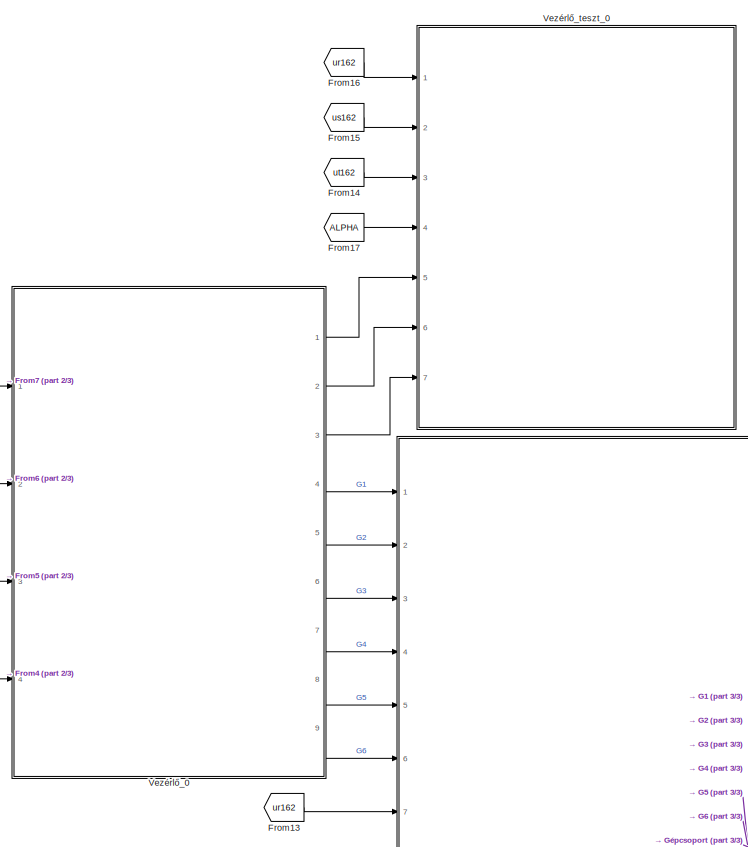
[diagram: root canvas - part 1/3, top center region]
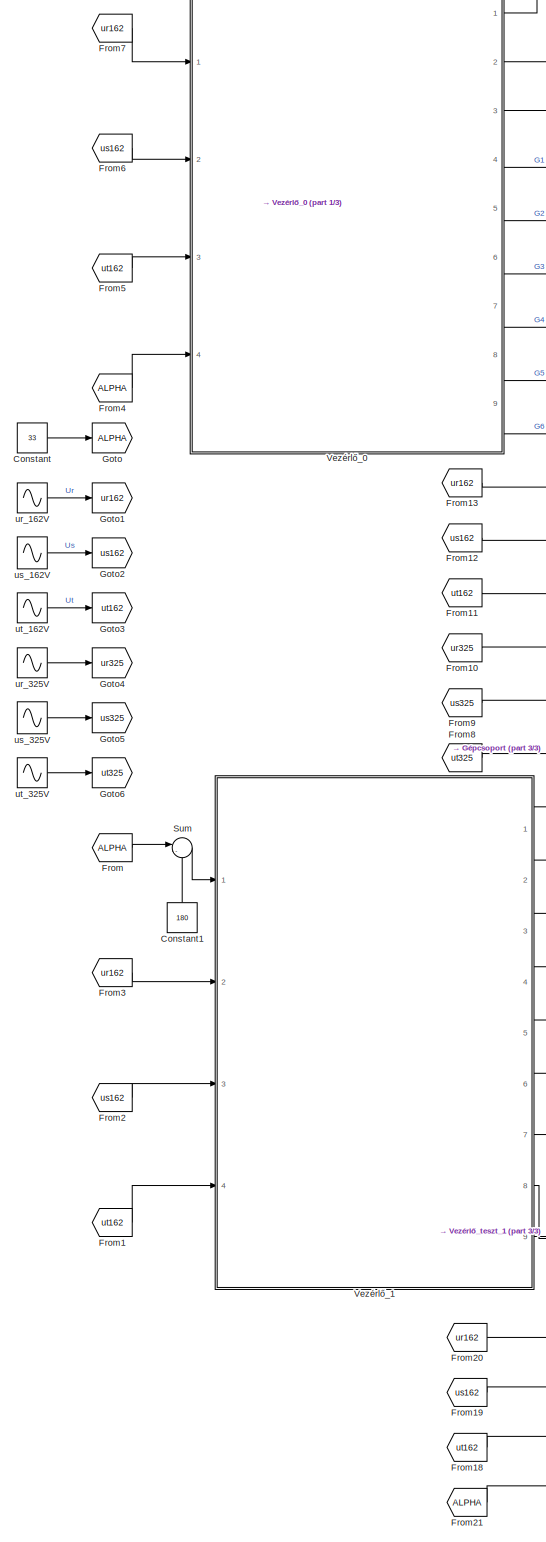
[diagram: root canvas - part 2/3, left side, full height]
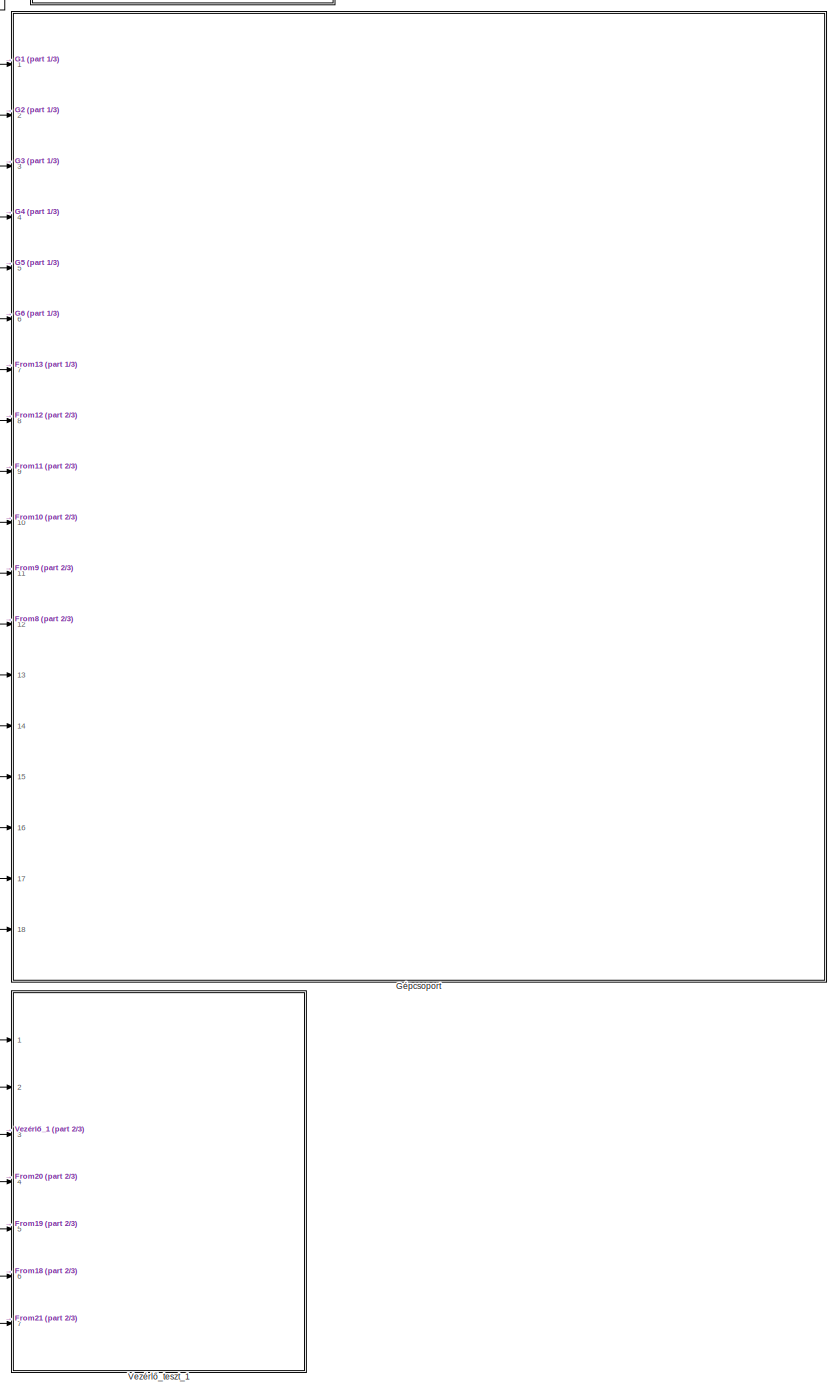
[diagram: root canvas - part 3/3, right side, full height]
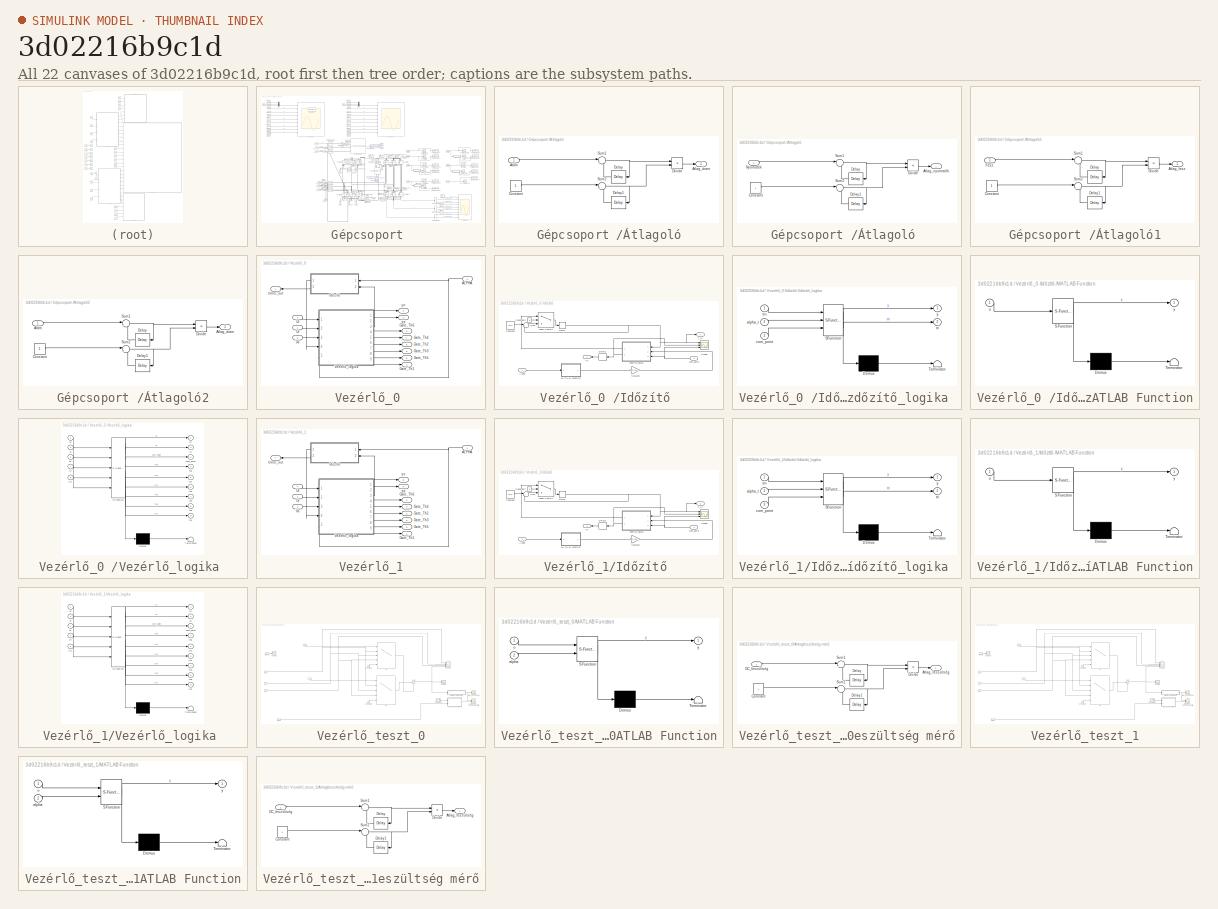
[diagram: thumbnail index - all 22 canvases of the model, root first then tree order]
MODEL slx_3d02216b9c1d
KIND model
CONFIG AbsTol = auto
CONFIG EnableMultiTasking = off
CONFIG FixedStep = 1e-5
CONFIG MaxStep = 1e-4
CONFIG MinStep = auto
CONFIG RelTol = 1e-3
CONFIG SampleTimeConstraint = Unconstrained
CONFIG Solver = FixedStepAuto
CONFIG SolverName = FixedStepAuto
CONFIG StartTime = 0.0
CONFIG StopTime = 5
BLOCK [Constant] Constant
  Value = 33
BLOCK [Constant] Constant1
  Value = 180
BLOCK [From] From
  GotoTag = ALPHA
BLOCK [From] From1
  GotoTag = ut162
BLOCK [From] From10
  GotoTag = ur325
BLOCK [From] From11
  GotoTag = ut162
BLOCK [From] From12
  GotoTag = us162
BLOCK [From] From13
  GotoTag = ur162
BLOCK [From] From14
  GotoTag = ut162
BLOCK [From] From15
  GotoTag = us162
BLOCK [From] From16
  GotoTag = ur162
BLOCK [From] From17
  GotoTag = ALPHA
BLOCK [From] From18
  GotoTag = ut162
BLOCK [From] From19
  GotoTag = us162
BLOCK [From] From2
  GotoTag = us162
BLOCK [From] From20
  GotoTag = ur162
BLOCK [From] From21
  GotoTag = ALPHA
BLOCK [From] From3
  GotoTag = ur162
BLOCK [From] From4
  GotoTag = ALPHA
BLOCK [From] From5
  GotoTag = ut162
BLOCK [From] From6
  GotoTag = us162
BLOCK [From] From7
  GotoTag = ur162
BLOCK [From] From8
  GotoTag = ut325
BLOCK [From] From9
  GotoTag = us325
BLOCK [Goto] Goto
  GotoTag = ALPHA
BLOCK [Goto] Goto1
  GotoTag = ur162
BLOCK [Goto] Goto2
  GotoTag = us162
BLOCK [Goto] Goto3
  GotoTag = ut162
BLOCK [Goto] Goto4
  GotoTag = ur325
BLOCK [Goto] Goto5
  GotoTag = us325
BLOCK [Goto] Goto6
  GotoTag = ut325
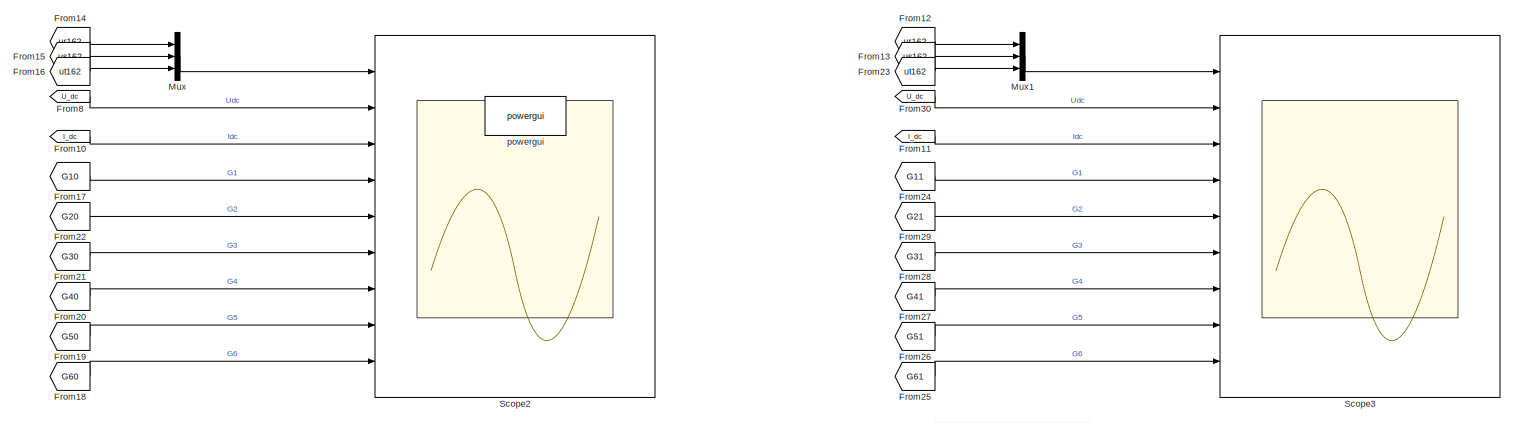
[diagram: Gépcsoport  - part 1/3, top left region]
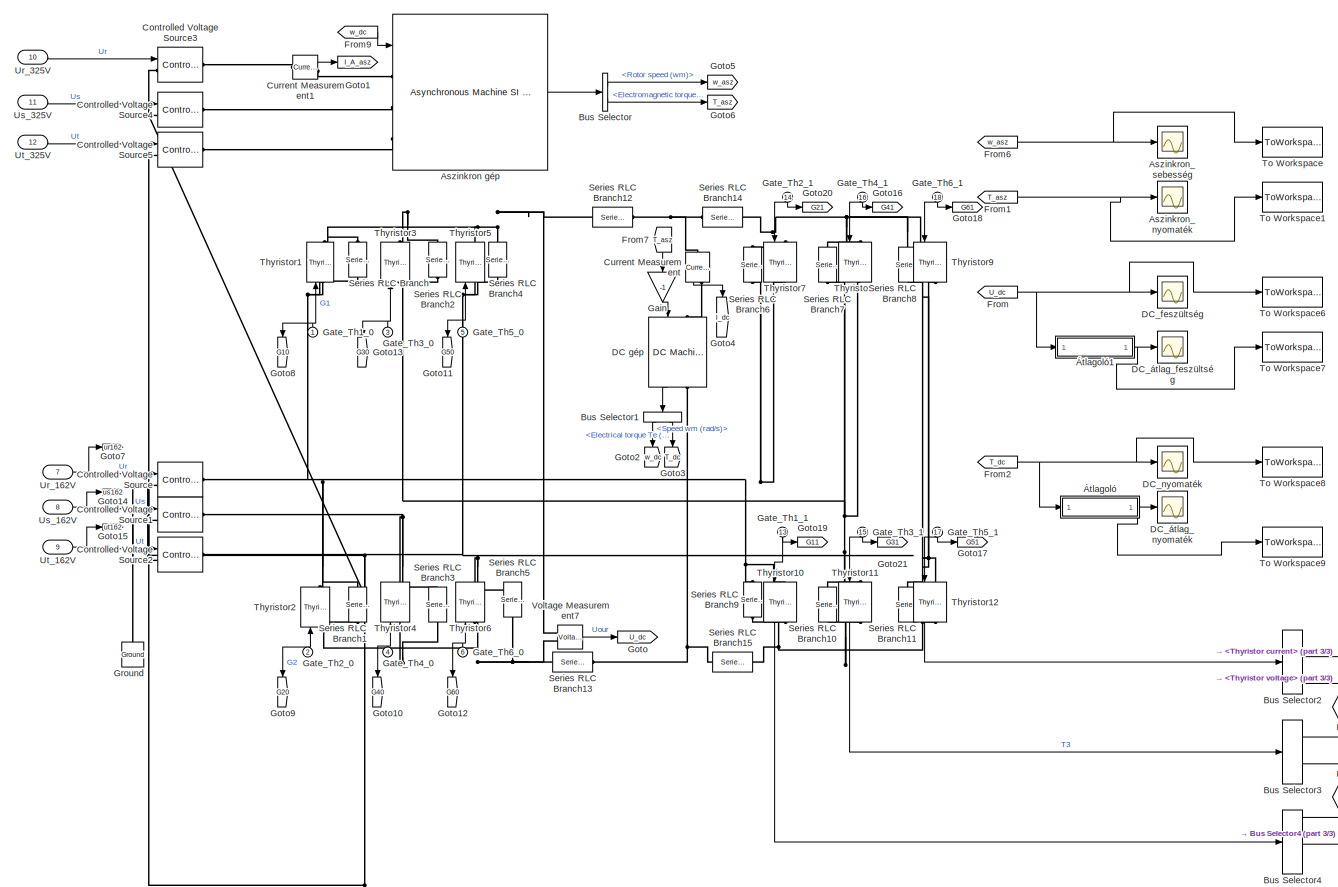
[diagram: Gépcsoport  - part 2/3, central region]
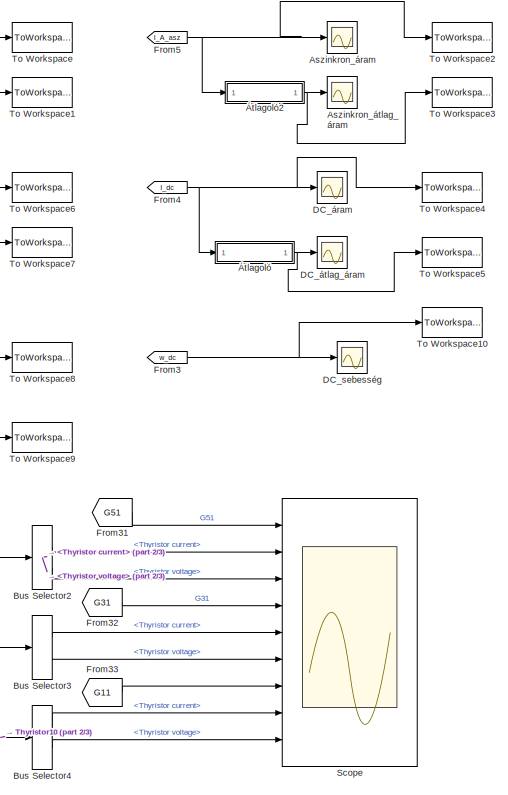
[diagram: Gépcsoport  - part 3/3, bottom right region]
BLOCK [SubSystem] Gépcsoport 
  Ports = [18]
  RequestExecContextInheritance = off
  Variant = off
BLOCK [Reference] Gépcsoport /Aszinkron gép  REF=powerlib/Machines/Asynchronous Machine
SI Units
  Ports = [1, 1, 0, 0, 0, 3]
  SourceBlock = powerlib/Machines/Asynchronous Machine\nSI Units
  SourceProductBaseCode = PS
  SourceProductName = Simscape Power Systems
  SourceType = Asynchronous Machine
BLOCK [Scope] Gépcsoport /Aszinkron_nyomaték 
  NumInputPorts = 1
  Ports = [1]
  ScopeSpecificationString = Simulink.scopes.TimeScopeBlockCfg('CurrentConfiguration', extmgr.ConfigurationSet(extmgr.Configuration('Core','General UI',true),extmgr.Configuration('Core','Source UI',true),extmgr.Configuration('Sources','WiredSimulink',true,'DataLoggingVariableName','ScopeData3'),extmgr.Configuration('Visuals','Time Domain',true,'SerializedDisplays',{struct('MinYLimReal','-333.76604','MaxYLimReal','185.88803','...<+1505ch>
BLOCK [Scope] Gépcsoport /Aszinkron_sebesség 
  NumInputPorts = 1
  Ports = [1]
  ScopeSpecificationString = Simulink.scopes.TimeScopeBlockCfg('CurrentConfiguration', extmgr.ConfigurationSet(extmgr.Configuration('Core','General UI',true),extmgr.Configuration('Core','Source UI',true),extmgr.Configuration('Sources','WiredSimulink',true,'DataLoggingVariableName','ScopeData4'),extmgr.Configuration('Visuals','Time Domain',true,'SerializedDisplays',{struct('MinYLimReal','-18.82809','MaxYLimReal','179.45276','Y...<+1486ch>
BLOCK [Scope] Gépcsoport /Aszinkron_áram
  NumInputPorts = 1
  Ports = [1]
  ScopeSpecificationString = Simulink.scopes.TimeScopeBlockCfg('CurrentConfiguration', extmgr.ConfigurationSet(extmgr.Configuration('Core','General UI',true),extmgr.Configuration('Core','Source UI',true),extmgr.Configuration('Sources','WiredSimulink',true,'DataLoggingVariableName','ScopeData5'),extmgr.Configuration('Visuals','Time Domain',true,'SerializedDisplays',{struct('MinYLimReal','-70.36937','MaxYLimReal','59.82722','YL...<+1761ch>
BLOCK [Scope] Gépcsoport /Aszinkron_átlag_áram
  NumInputPorts = 1
  Ports = [1]
  ScopeSpecificationString = Simulink.scopes.TimeScopeBlockCfg('CurrentConfiguration', extmgr.ConfigurationSet(extmgr.Configuration('Core','General UI',true),extmgr.Configuration('Core','Source UI',true),extmgr.Configuration('Sources','WiredSimulink',true,'DataLoggingVariableName','ScopeData2'),extmgr.Configuration('Visuals','Time Domain',true,'SerializedDisplays',{struct('MinYLimReal','-70.36937','MaxYLimReal','59.82722','YL...<+1741ch>
BLOCK [BusSelector] Gépcsoport /Bus Selector
  OutputAsBus = off
  OutputSignals = Mechanical.Rotor speed (wm),Mechanical.Electromagnetic torque Te (N*m)
  Ports = [1, 2]
BLOCK [BusSelector] Gépcsoport /Bus Selector1
  OutputAsBus = off
  OutputSignals = Speed wm (rad/s),Electrical torque Te (n m)
  Ports = [1, 2]
BLOCK [BusSelector] Gépcsoport /Bus Selector2
  OutputAsBus = off
  OutputSignals = Thyristor current,Thyristor voltage
  Ports = [1, 2]
BLOCK [BusSelector] Gépcsoport /Bus Selector3
  OutputAsBus = off
  OutputSignals = Thyristor current,Thyristor voltage
  Ports = [1, 2]
BLOCK [BusSelector] Gépcsoport /Bus Selector4
  OutputAsBus = off
  OutputSignals = Thyristor current,Thyristor voltage
  Ports = [1, 2]
BLOCK [Reference] Gépcsoport /Controlled Voltage Source  REF=powerlib/Electrical
Sources/Controlled Voltage Source
  Ports = [1, 0, 0, 0, 0, 1, 1]
  SourceBlock = powerlib/Electrical\nSources/Controlled Voltage Source
  SourceProductBaseCode = PS
  SourceProductName = Simscape Power Systems
  SourceType = Controlled Voltage Source
BLOCK [Reference] Gépcsoport /Controlled Voltage Source1  REF=powerlib/Electrical
Sources/Controlled Voltage Source
  Ports = [1, 0, 0, 0, 0, 1, 1]
  SourceBlock = powerlib/Electrical\nSources/Controlled Voltage Source
  SourceProductBaseCode = PS
  SourceProductName = Simscape Power Systems
  SourceType = Controlled Voltage Source
BLOCK [Reference] Gépcsoport /Controlled Voltage Source2  REF=powerlib/Electrical
Sources/Controlled Voltage Source
  Ports = [1, 0, 0, 0, 0, 1, 1]
  SourceBlock = powerlib/Electrical\nSources/Controlled Voltage Source
  SourceProductBaseCode = PS
  SourceProductName = Simscape Power Systems
  SourceType = Controlled Voltage Source
BLOCK [Reference] Gépcsoport /Controlled Voltage Source3  REF=powerlib/Electrical
Sources/Controlled Voltage Source
  Ports = [1, 0, 0, 0, 0, 1, 1]
  SourceBlock = powerlib/Electrical\nSources/Controlled Voltage Source
  SourceProductBaseCode = PS
  SourceProductName = Simscape Power Systems
  SourceType = Controlled Voltage Source
BLOCK [Reference] Gépcsoport /Controlled Voltage Source4  REF=powerlib/Electrical
Sources/Controlled Voltage Source
  Ports = [1, 0, 0, 0, 0, 1, 1]
  SourceBlock = powerlib/Electrical\nSources/Controlled Voltage Source
  SourceProductBaseCode = PS
  SourceProductName = Simscape Power Systems
  SourceType = Controlled Voltage Source
BLOCK [Reference] Gépcsoport /Controlled Voltage Source5  REF=powerlib/Electrical
Sources/Controlled Voltage Source
  Ports = [1, 0, 0, 0, 0, 1, 1]
  SourceBlock = powerlib/Electrical\nSources/Controlled Voltage Source
  SourceProductBaseCode = PS
  SourceProductName = Simscape Power Systems
  SourceType = Controlled Voltage Source
BLOCK [Reference] Gépcsoport /Current Measurement  REF=powerlib/Measurements/Current Measurement
  Ports = [0, 1, 0, 0, 0, 1, 1]
  SourceBlock = powerlib/Measurements/Current Measurement
  SourceProductBaseCode = PS
  SourceProductName = Simscape Power Systems
  SourceType = Current Measurement
  UserDataPersistent = on
BLOCK [Reference] Gépcsoport /Current Measurement1  REF=powerlib/Measurements/Current Measurement
  Ports = [0, 1, 0, 0, 0, 1, 1]
  SourceBlock = powerlib/Measurements/Current Measurement
  SourceProductBaseCode = PS
  SourceProductName = Simscape Power Systems
  SourceType = Current Measurement
  UserDataPersistent = on
BLOCK [Reference] Gépcsoport /DC gép  REF=powerlib/Machines/DC Machine
  Ports = [1, 1, 0, 0, 0, 1, 1]
  SourceBlock = powerlib/Machines/DC Machine
  SourceProductBaseCode = PS
  SourceProductName = Simscape Power Systems
  SourceType = DC machine
BLOCK [Scope] Gépcsoport /DC_feszültség 
  NumInputPorts = 1
  Ports = [1]
  ScopeSpecificationString = Simulink.scopes.TimeScopeBlockCfg('CurrentConfiguration', extmgr.ConfigurationSet(extmgr.Configuration('Core','General UI',true),extmgr.Configuration('Core','Source UI',true),extmgr.Configuration('Sources','WiredSimulink',true,'DataLoggingVariableName','ScopeData6'),extmgr.Configuration('Visuals','Time Domain',true,'SerializedDisplays',{struct('MinYLimReal','-34.79529','MaxYLimReal','313.15757','Y...<+1473ch>
BLOCK [Scope] Gépcsoport /DC_nyomaték 
  NumInputPorts = 1
  Ports = [1]
  ScopeSpecificationString = Simulink.scopes.TimeScopeBlockCfg('CurrentConfiguration', extmgr.ConfigurationSet(extmgr.Configuration('Core','General UI',true),extmgr.Configuration('Core','Source UI',true),extmgr.Configuration('Sources','WiredSimulink',true,'DataLoggingVariableName','ScopeData7'),extmgr.Configuration('Visuals','Time Domain',true,'SerializedDisplays',{struct('MinYLimReal','-580.31604','MaxYLimReal','425.46918','...<+1472ch>
BLOCK [Scope] Gépcsoport /DC_sebesség 
  NumInputPorts = 1
  Ports = [1]
  ScopeSpecificationString = Simulink.scopes.TimeScopeBlockCfg('CurrentConfiguration', extmgr.ConfigurationSet(extmgr.Configuration('Core','General UI',true),extmgr.Configuration('Core','Source UI',true),extmgr.Configuration('Sources','WiredSimulink',true,'DataLoggingVariableName','ScopeData8'),extmgr.Configuration('Visuals','Time Domain',true,'SerializedDisplays',{struct('MinYLimReal','104.0556','MaxYLimReal','106.36342','YL...<+1536ch>
BLOCK [Scope] Gépcsoport /DC_áram 
  NumInputPorts = 1
  Ports = [1]
  ScopeSpecificationString = Simulink.scopes.TimeScopeBlockCfg('CurrentConfiguration', extmgr.ConfigurationSet(extmgr.Configuration('Core','General UI',true),extmgr.Configuration('Core','Source UI',true),extmgr.Configuration('Sources','WiredSimulink',true,'DataLoggingVariableName','ScopeData9'),extmgr.Configuration('Visuals','Time Domain',true,'SerializedDisplays',{struct('MinYLimReal','-12.53836','MaxYLimReal','112.83789','Y...<+1488ch>
BLOCK [Scope] Gépcsoport /DC_átlag_feszültség
  NumInputPorts = 1
  Ports = [1]
  ScopeSpecificationString = Simulink.scopes.TimeScopeBlockCfg('CurrentConfiguration', extmgr.ConfigurationSet(extmgr.Configuration('Core','General UI',true),extmgr.Configuration('Core','Source UI',true),extmgr.Configuration('Sources','WiredSimulink',true,'DataLoggingVariableName','ScopeData1'),extmgr.Configuration('Visuals','Time Domain',true,'SerializedDisplays',{struct('MinYLimReal','-25.83526','MaxYLimReal','250.47696','Y...<+1477ch>
BLOCK [Scope] Gépcsoport /DC_átlag_nyomaték 
  NumInputPorts = 1
  Ports = [1]
  ScopeSpecificationString = Simulink.scopes.TimeScopeBlockCfg('CurrentConfiguration', extmgr.ConfigurationSet(extmgr.Configuration('Core','General UI',true),extmgr.Configuration('Core','Source UI',true),extmgr.Configuration('Sources','WiredSimulink',true,'DataLoggingVariableName','ScopeData10'),extmgr.Configuration('Visuals','Time Domain',true,'SerializedDisplays',{struct('MinYLimReal','-64.70786','MaxYLimReal','117.52342','...<+1478ch>
BLOCK [Scope] Gépcsoport /DC_átlag_áram
  NumInputPorts = 1
  Ports = [1]
  ScopeSpecificationString = Simulink.scopes.TimeScopeBlockCfg('CurrentConfiguration', extmgr.ConfigurationSet(extmgr.Configuration('Core','General UI',true),extmgr.Configuration('Core','Source UI',true),extmgr.Configuration('Sources','WiredSimulink',true,'DataLoggingVariableName','ScopeData11'),extmgr.Configuration('Visuals','Time Domain',true,'SerializedDisplays',{struct('MinYLimReal','36.81544','MaxYLimReal','40.23127','YL...<+1473ch>
BLOCK [From] Gépcsoport /From
  GotoTag = U_dc
BLOCK [From] Gépcsoport /From1
  GotoTag = T_asz
BLOCK [From] Gépcsoport /From10
  GotoTag = I_dc
BLOCK [From] Gépcsoport /From11
  GotoTag = I_dc
BLOCK [From] Gépcsoport /From12
  GotoTag = ur162
BLOCK [From] Gépcsoport /From13
  GotoTag = us162
BLOCK [From] Gépcsoport /From14
  GotoTag = ur162
BLOCK [From] Gépcsoport /From15
  GotoTag = us162
BLOCK [From] Gépcsoport /From16
  GotoTag = ut162
BLOCK [From] Gépcsoport /From17
  GotoTag = G10
BLOCK [From] Gépcsoport /From18
  GotoTag = G60
BLOCK [From] Gépcsoport /From19
  GotoTag = G50
BLOCK [From] Gépcsoport /From2
  GotoTag = T_dc
BLOCK [From] Gépcsoport /From20
  GotoTag = G40
BLOCK [From] Gépcsoport /From21
  GotoTag = G30
BLOCK [From] Gépcsoport /From22
  GotoTag = G20
BLOCK [From] Gépcsoport /From23
  GotoTag = ut162
BLOCK [From] Gépcsoport /From24
  GotoTag = G11
BLOCK [From] Gépcsoport /From25
  GotoTag = G61
BLOCK [From] Gépcsoport /From26
  GotoTag = G51
BLOCK [From] Gépcsoport /From27
  GotoTag = G41
BLOCK [From] Gépcsoport /From28
  GotoTag = G31
BLOCK [From] Gépcsoport /From29
  GotoTag = G21
BLOCK [From] Gépcsoport /From3
  GotoTag = w_dc
BLOCK [From] Gépcsoport /From30
  GotoTag = U_dc
BLOCK [From] Gépcsoport /From31
  GotoTag = G51
BLOCK [From] Gépcsoport /From32
  GotoTag = G31
BLOCK [From] Gépcsoport /From33
  GotoTag = G11
BLOCK [From] Gépcsoport /From4
  GotoTag = I_dc
BLOCK [From] Gépcsoport /From5
  GotoTag = I_A_asz
BLOCK [From] Gépcsoport /From6
  GotoTag = w_asz
BLOCK [From] Gépcsoport /From7
  GotoTag = T_asz
BLOCK [From] Gépcsoport /From8
  GotoTag = U_dc
BLOCK [From] Gépcsoport /From9
  GotoTag = w_dc
BLOCK [Gain] Gépcsoport /Gain
  Gain = -1
  OutDataTypeStr = Inherit: Inherit via internal rule
  ParamDataTypeStr = Inherit: Inherit via internal rule
  SaturateOnIntegerOverflow = off
BLOCK [Inport] Gépcsoport /Gate_Th1_0 
  IconDisplay = Port number
BLOCK [Inport] Gépcsoport /Gate_Th1_1
  IconDisplay = Port number
  Port = 13
BLOCK [Inport] Gépcsoport /Gate_Th2_0
  IconDisplay = Port number
  Port = 2
BLOCK [Inport] Gépcsoport /Gate_Th2_1
  IconDisplay = Port number
  Port = 14
BLOCK [Inport] Gépcsoport /Gate_Th3_0
  IconDisplay = Port number
  Port = 3
BLOCK [Inport] Gépcsoport /Gate_Th3_1
  IconDisplay = Port number
  Port = 15
BLOCK [Inport] Gépcsoport /Gate_Th4_0
  IconDisplay = Port number
  Port = 4
BLOCK [Inport] Gépcsoport /Gate_Th4_1
  IconDisplay = Port number
  Port = 16
BLOCK [Inport] Gépcsoport /Gate_Th5_0
  IconDisplay = Port number
  Port = 5
BLOCK [Inport] Gépcsoport /Gate_Th5_1
  IconDisplay = Port number
  Port = 17
BLOCK [Inport] Gépcsoport /Gate_Th6_0
  IconDisplay = Port number
  Port = 6
BLOCK [Inport] Gépcsoport /Gate_Th6_1
  IconDisplay = Port number
  Port = 18
BLOCK [Goto] Gépcsoport /Goto
  GotoTag = U_dc
BLOCK [Goto] Gépcsoport /Goto1
  GotoTag = I_A_asz
BLOCK [Goto] Gépcsoport /Goto10
  GotoTag = G40
BLOCK [Goto] Gépcsoport /Goto11
  GotoTag = G50
BLOCK [Goto] Gépcsoport /Goto12
  GotoTag = G60
BLOCK [Goto] Gépcsoport /Goto13
  GotoTag = G30
BLOCK [Goto] Gépcsoport /Goto14
  GotoTag = us162
BLOCK [Goto] Gépcsoport /Goto15
  GotoTag = ut162
BLOCK [Goto] Gépcsoport /Goto16
  GotoTag = G41
BLOCK [Goto] Gépcsoport /Goto17
  GotoTag = G51
BLOCK [Goto] Gépcsoport /Goto18
  GotoTag = G61
BLOCK [Goto] Gépcsoport /Goto19
  GotoTag = G11
BLOCK [Goto] Gépcsoport /Goto2
  GotoTag = w_dc
BLOCK [Goto] Gépcsoport /Goto20
  GotoTag = G21
BLOCK [Goto] Gépcsoport /Goto21
  GotoTag = G31
BLOCK [Goto] Gépcsoport /Goto3
  GotoTag = T_dc
BLOCK [Goto] Gépcsoport /Goto4
  GotoTag = I_dc
BLOCK [Goto] Gépcsoport /Goto5
  GotoTag = w_asz
BLOCK [Goto] Gépcsoport /Goto6
  GotoTag = T_asz
BLOCK [Goto] Gépcsoport /Goto7
  GotoTag = ur162
BLOCK [Goto] Gépcsoport /Goto8
  GotoTag = G10
BLOCK [Goto] Gépcsoport /Goto9
  GotoTag = G20
BLOCK [Reference] Gépcsoport /Ground  REF=powerlib/Elements/Ground
  Ports = [0, 0, 0, 0, 0, 1]
  SourceBlock = powerlib/Elements/Ground
  SourceProductBaseCode = PS
  SourceProductName = Simscape Power Systems
  SourceType = Ground
BLOCK [Mux] Gépcsoport /Mux
  DisplayOption = bar
  Inputs = 3
  Ports = [3, 1]
BLOCK [Mux] Gépcsoport /Mux1
  DisplayOption = bar
  Inputs = 3
  Ports = [3, 1]
BLOCK [Scope] Gépcsoport /Scope
  NumInputPorts = 9
  Ports = [9]
  ScopeSpecificationString = Simulink.scopes.TimeScopeBlockCfg('CurrentConfiguration', extmgr.ConfigurationSet(extmgr.Configuration('Core','General UI',true),extmgr.Configuration('Core','Source UI',true),extmgr.Configuration('Sources','WiredSimulink',true,'DataLoggingVariableName','ScopeData3'),extmgr.Configuration('Visuals','Time Domain',true,'SerializedDisplays',{struct('MinYLimReal','-0.125','MaxYLimReal','1.125','YLabelRe...<+5279ch>
BLOCK [Scope] Gépcsoport /Scope2
  NumInputPorts = 9
  Ports = [9]
  ScopeSpecificationString = Simulink.scopes.TimeScopeBlockCfg('CurrentConfiguration', extmgr.ConfigurationSet(extmgr.Configuration('Core','General UI',true),extmgr.Configuration('Core','Source UI',true),extmgr.Configuration('Sources','WiredSimulink',true,'DataLoggingVariableName','ScopeData1'),extmgr.Configuration('Visuals','Time Domain',true,'SerializedDisplays',{struct('MinYLimReal','-202.5','MaxYLimReal','202.5','YLabelRe...<+7034ch>
BLOCK [Scope] Gépcsoport /Scope3
  NumInputPorts = 9
  Ports = [9]
  ScopeSpecificationString = Simulink.scopes.TimeScopeBlockCfg('CurrentConfiguration', extmgr.ConfigurationSet(extmgr.Configuration('Core','General UI',true),extmgr.Configuration('Core','Source UI',true),extmgr.Configuration('Sources','WiredSimulink',true,'DataLoggingVariableName','ScopeData2'),extmgr.Configuration('Visuals','Time Domain',true,'SerializedDisplays',{struct('MinYLimReal','-202.5','MaxYLimReal','202.5','YLabelRe...<+7369ch>
BLOCK [Reference] Gépcsoport /Series RLC Branch  REF=powerlib/Elements/Series RLC Branch
  Ports = [0, 0, 0, 0, 0, 1, 1]
  SourceBlock = powerlib/Elements/Series RLC Branch
  SourceProductBaseCode = PS
  SourceProductName = Simscape Power Systems
  SourceType = Series RLC Branch
BLOCK [Reference] Gépcsoport /Series RLC Branch1  REF=powerlib/Elements/Series RLC Branch
  Ports = [0, 0, 0, 0, 0, 1, 1]
  SourceBlock = powerlib/Elements/Series RLC Branch
  SourceProductBaseCode = PS
  SourceProductName = Simscape Power Systems
  SourceType = Series RLC Branch
BLOCK [Reference] Gépcsoport /Series RLC Branch10  REF=powerlib/Elements/Series RLC Branch
  Ports = [0, 0, 0, 0, 0, 1, 1]
  SourceBlock = powerlib/Elements/Series RLC Branch
  SourceProductBaseCode = PS
  SourceProductName = Simscape Power Systems
  SourceType = Series RLC Branch
BLOCK [Reference] Gépcsoport /Series RLC Branch11  REF=powerlib/Elements/Series RLC Branch
  Ports = [0, 0, 0, 0, 0, 1, 1]
  SourceBlock = powerlib/Elements/Series RLC Branch
  SourceProductBaseCode = PS
  SourceProductName = Simscape Power Systems
  SourceType = Series RLC Branch
BLOCK [Reference] Gépcsoport /Series RLC Branch12  REF=powerlib/Elements/Series RLC Branch
  Ports = [0, 0, 0, 0, 0, 1, 1]
  SourceBlock = powerlib/Elements/Series RLC Branch
  SourceProductBaseCode = PS
  SourceProductName = Simscape Power Systems
  SourceType = Series RLC Branch
BLOCK [Reference] Gépcsoport /Series RLC Branch13  REF=powerlib/Elements/Series RLC Branch
  Ports = [0, 0, 0, 0, 0, 1, 1]
  SourceBlock = powerlib/Elements/Series RLC Branch
  SourceProductBaseCode = PS
  SourceProductName = Simscape Power Systems
  SourceType = Series RLC Branch
BLOCK [Reference] Gépcsoport /Series RLC Branch14  REF=powerlib/Elements/Series RLC Branch
  Ports = [0, 0, 0, 0, 0, 1, 1]
  SourceBlock = powerlib/Elements/Series RLC Branch
  SourceProductBaseCode = PS
  SourceProductName = Simscape Power Systems
  SourceType = Series RLC Branch
BLOCK [Reference] Gépcsoport /Series RLC Branch15  REF=powerlib/Elements/Series RLC Branch
  Ports = [0, 0, 0, 0, 0, 1, 1]
  SourceBlock = powerlib/Elements/Series RLC Branch
  SourceProductBaseCode = PS
  SourceProductName = Simscape Power Systems
  SourceType = Series RLC Branch
BLOCK [Reference] Gépcsoport /Series RLC Branch2  REF=powerlib/Elements/Series RLC Branch
  Ports = [0, 0, 0, 0, 0, 1, 1]
  SourceBlock = powerlib/Elements/Series RLC Branch
  SourceProductBaseCode = PS
  SourceProductName = Simscape Power Systems
  SourceType = Series RLC Branch
BLOCK [Reference] Gépcsoport /Series RLC Branch3  REF=powerlib/Elements/Series RLC Branch
  Ports = [0, 0, 0, 0, 0, 1, 1]
  SourceBlock = powerlib/Elements/Series RLC Branch
  SourceProductBaseCode = PS
  SourceProductName = Simscape Power Systems
  SourceType = Series RLC Branch
BLOCK [Reference] Gépcsoport /Series RLC Branch4  REF=powerlib/Elements/Series RLC Branch
  Ports = [0, 0, 0, 0, 0, 1, 1]
  SourceBlock = powerlib/Elements/Series RLC Branch
  SourceProductBaseCode = PS
  SourceProductName = Simscape Power Systems
  SourceType = Series RLC Branch
BLOCK [Reference] Gépcsoport /Series RLC Branch5  REF=powerlib/Elements/Series RLC Branch
  Ports = [0, 0, 0, 0, 0, 1, 1]
  SourceBlock = powerlib/Elements/Series RLC Branch
  SourceProductBaseCode = PS
  SourceProductName = Simscape Power Systems
  SourceType = Series RLC Branch
BLOCK [Reference] Gépcsoport /Series RLC Branch6  REF=powerlib/Elements/Series RLC Branch
  Ports = [0, 0, 0, 0, 0, 1, 1]
  SourceBlock = powerlib/Elements/Series RLC Branch
  SourceProductBaseCode = PS
  SourceProductName = Simscape Power Systems
  SourceType = Series RLC Branch
BLOCK [Reference] Gépcsoport /Series RLC Branch7  REF=powerlib/Elements/Series RLC Branch
  Ports = [0, 0, 0, 0, 0, 1, 1]
  SourceBlock = powerlib/Elements/Series RLC Branch
  SourceProductBaseCode = PS
  SourceProductName = Simscape Power Systems
  SourceType = Series RLC Branch
BLOCK [Reference] Gépcsoport /Series RLC Branch8  REF=powerlib/Elements/Series RLC Branch
  Ports = [0, 0, 0, 0, 0, 1, 1]
  SourceBlock = powerlib/Elements/Series RLC Branch
  SourceProductBaseCode = PS
  SourceProductName = Simscape Power Systems
  SourceType = Series RLC Branch
BLOCK [Reference] Gépcsoport /Series RLC Branch9  REF=powerlib/Elements/Series RLC Branch
  Ports = [0, 0, 0, 0, 0, 1, 1]
  SourceBlock = powerlib/Elements/Series RLC Branch
  SourceProductBaseCode = PS
  SourceProductName = Simscape Power Systems
  SourceType = Series RLC Branch
BLOCK [Reference] Gépcsoport /Thyristor1  REF=powerlib/Power
Electronics/Thyristor
  Ports = [1, 1, 0, 0, 0, 1, 1]
  SourceBlock = powerlib/Power\nElectronics/Thyristor
  SourceProductBaseCode = PS
  SourceProductName = Simscape Power Systems
  SourceType = Thyristor
BLOCK [Reference] Gépcsoport /Thyristor10  REF=powerlib/Power
Electronics/Thyristor
  Ports = [1, 1, 0, 0, 0, 1, 1]
  SourceBlock = powerlib/Power\nElectronics/Thyristor
  SourceProductBaseCode = PS
  SourceProductName = Simscape Power Systems
  SourceType = Thyristor
BLOCK [Reference] Gépcsoport /Thyristor11  REF=powerlib/Power
Electronics/Thyristor
  Ports = [1, 1, 0, 0, 0, 1, 1]
  SourceBlock = powerlib/Power\nElectronics/Thyristor
  SourceProductBaseCode = PS
  SourceProductName = Simscape Power Systems
  SourceType = Thyristor
BLOCK [Reference] Gépcsoport /Thyristor12  REF=powerlib/Power
Electronics/Thyristor
  Ports = [1, 1, 0, 0, 0, 1, 1]
  SourceBlock = powerlib/Power\nElectronics/Thyristor
  SourceProductBaseCode = PS
  SourceProductName = Simscape Power Systems
  SourceType = Thyristor
BLOCK [Reference] Gépcsoport /Thyristor2  REF=powerlib/Power
Electronics/Thyristor
  Ports = [1, 1, 0, 0, 0, 1, 1]
  SourceBlock = powerlib/Power\nElectronics/Thyristor
  SourceProductBaseCode = PS
  SourceProductName = Simscape Power Systems
  SourceType = Thyristor
BLOCK [Reference] Gépcsoport /Thyristor3  REF=powerlib/Power
Electronics/Thyristor
  Ports = [1, 1, 0, 0, 0, 1, 1]
  SourceBlock = powerlib/Power\nElectronics/Thyristor
  SourceProductBaseCode = PS
  SourceProductName = Simscape Power Systems
  SourceType = Thyristor
BLOCK [Reference] Gépcsoport /Thyristor4  REF=powerlib/Power
Electronics/Thyristor
  Ports = [1, 1, 0, 0, 0, 1, 1]
  SourceBlock = powerlib/Power\nElectronics/Thyristor
  SourceProductBaseCode = PS
  SourceProductName = Simscape Power Systems
  SourceType = Thyristor
BLOCK [Reference] Gépcsoport /Thyristor5  REF=powerlib/Power
Electronics/Thyristor
  Ports = [1, 1, 0, 0, 0, 1, 1]
  SourceBlock = powerlib/Power\nElectronics/Thyristor
  SourceProductBaseCode = PS
  SourceProductName = Simscape Power Systems
  SourceType = Thyristor
BLOCK [Reference] Gépcsoport /Thyristor6  REF=powerlib/Power
Electronics/Thyristor
  Ports = [1, 1, 0, 0, 0, 1, 1]
  SourceBlock = powerlib/Power\nElectronics/Thyristor
  SourceProductBaseCode = PS
  SourceProductName = Simscape Power Systems
  SourceType = Thyristor
BLOCK [Reference] Gépcsoport /Thyristor7  REF=powerlib/Power
Electronics/Thyristor
  Ports = [1, 1, 0, 0, 0, 1, 1]
  SourceBlock = powerlib/Power\nElectronics/Thyristor
  SourceProductBaseCode = PS
  SourceProductName = Simscape Power Systems
  SourceType = Thyristor
BLOCK [Reference] Gépcsoport /Thyristor8  REF=powerlib/Power
Electronics/Thyristor
  Ports = [1, 1, 0, 0, 0, 1, 1]
  SourceBlock = powerlib/Power\nElectronics/Thyristor
  SourceProductBaseCode = PS
  SourceProductName = Simscape Power Systems
  SourceType = Thyristor
BLOCK [Reference] Gépcsoport /Thyristor9  REF=powerlib/Power
Electronics/Thyristor
  Ports = [1, 1, 0, 0, 0, 1, 1]
  SourceBlock = powerlib/Power\nElectronics/Thyristor
  SourceProductBaseCode = PS
  SourceProductName = Simscape Power Systems
  SourceType = Thyristor
BLOCK [ToWorkspace] Gépcsoport /To Workspace
  FixptAsFi = on
  MaxDataPoints = inf
  Ports = [1]
  SampleTime = -1
  Save2DSignal = 3-D array (concatenate along third dimension)
  SaveFormat = Timeseries
  VariableName = w_asz_44
BLOCK [ToWorkspace] Gépcsoport /To Workspace1
  FixptAsFi = on
  MaxDataPoints = inf
  Ports = [1]
  SampleTime = -1
  Save2DSignal = 3-D array (concatenate along third dimension)
  SaveFormat = Timeseries
  VariableName = T_asz_44
BLOCK [ToWorkspace] Gépcsoport /To Workspace10
  FixptAsFi = on
  MaxDataPoints = inf
  Ports = [1]
  SampleTime = -1
  Save2DSignal = 3-D array (concatenate along third dimension)
  SaveFormat = Timeseries
  VariableName = w_dc_44
BLOCK [ToWorkspace] Gépcsoport /To Workspace2
  FixptAsFi = on
  MaxDataPoints = inf
  Ports = [1]
  SampleTime = -1
  Save2DSignal = 3-D array (concatenate along third dimension)
  SaveFormat = Timeseries
  VariableName = I_asz_44
BLOCK [ToWorkspace] Gépcsoport /To Workspace3
  FixptAsFi = on
  MaxDataPoints = inf
  Ports = [1]
  SampleTime = -1
  Save2DSignal = 3-D array (concatenate along third dimension)
  SaveFormat = Timeseries
  VariableName = I_asz_44_avg
BLOCK [ToWorkspace] Gépcsoport /To Workspace4
  FixptAsFi = on
  MaxDataPoints = inf
  Ports = [1]
  SampleTime = -1
  Save2DSignal = 3-D array (concatenate along third dimension)
  SaveFormat = Timeseries
  VariableName = I_dc_44
BLOCK [ToWorkspace] Gépcsoport /To Workspace5
  FixptAsFi = on
  MaxDataPoints = inf
  Ports = [1]
  SampleTime = -1
  Save2DSignal = 3-D array (concatenate along third dimension)
  SaveFormat = Timeseries
  VariableName = I_dc_44_avg
BLOCK [ToWorkspace] Gépcsoport /To Workspace6
  FixptAsFi = on
  MaxDataPoints = inf
  Ports = [1]
  SampleTime = -1
  Save2DSignal = 3-D array (concatenate along third dimension)
  SaveFormat = Timeseries
  VariableName = U_dc_44
BLOCK [ToWorkspace] Gépcsoport /To Workspace7
  FixptAsFi = on
  MaxDataPoints = inf
  Ports = [1]
  SampleTime = -1
  Save2DSignal = 3-D array (concatenate along third dimension)
  SaveFormat = Timeseries
  VariableName = U_dc_44_avg
BLOCK [ToWorkspace] Gépcsoport /To Workspace8
  FixptAsFi = on
  MaxDataPoints = inf
  Ports = [1]
  SampleTime = -1
  Save2DSignal = 3-D array (concatenate along third dimension)
  SaveFormat = Timeseries
  VariableName = T_dc_44
BLOCK [ToWorkspace] Gépcsoport /To Workspace9
  FixptAsFi = on
  MaxDataPoints = inf
  Ports = [1]
  SampleTime = -1
  Save2DSignal = 3-D array (concatenate along third dimension)
  SaveFormat = Timeseries
  VariableName = T_dc_44_avg
BLOCK [Inport] Gépcsoport /Ur_162V 
  IconDisplay = Port number
  Port = 7
BLOCK [Inport] Gépcsoport /Ur_325V
  IconDisplay = Port number
  Port = 10
BLOCK [Inport] Gépcsoport /Us_162V
  IconDisplay = Port number
  Port = 8
BLOCK [Inport] Gépcsoport /Us_325V
  IconDisplay = Port number
  Port = 11
BLOCK [Inport] Gépcsoport /Ut_162V
  IconDisplay = Port number
  Port = 9
BLOCK [Inport] Gépcsoport /Ut_325V 
  IconDisplay = Port number
  Port = 12
BLOCK [Reference] Gépcsoport /Voltage Measurement7  REF=powerlib/Measurements/Voltage Measurement
  Ports = [0, 1, 0, 0, 0, 2]
  SourceBlock = powerlib/Measurements/Voltage Measurement
  SourceProductBaseCode = PS
  SourceProductName = Simscape Power Systems
  SourceType = Voltage Measurement
  UserDataPersistent = on
BLOCK [Reference] Gépcsoport /powergui  REF=powerlib/powergui
  Ports = []
  Priority = 1
  SourceBlock = powerlib/powergui
  SourceProductBaseCode = PS
  SourceProductName = Simscape Power Systems
  SourceType = PSB option menu block
BLOCK [SubSystem] Gépcsoport /Átlagoló
  Ports = [1, 1]
  RequestExecContextInheritance = off
  Variant = off
BLOCK [SubSystem] Gépcsoport /Átlagoló 
  Ports = [1, 1]
  RequestExecContextInheritance = off
  Variant = off
BLOCK [Constant] Gépcsoport /Átlagoló /Constant
  SampleTime = -1
BLOCK [Delay] Gépcsoport /Átlagoló /Delay
  DelayLength = 1
  InitialCondition = 0
  InputPortMap = u0
  Ports = [1, 1]
BLOCK [Delay] Gépcsoport /Átlagoló /Delay1
  DelayLength = 1
  InitialCondition = 0
  InputPortMap = u0
  Ports = [1, 1]
BLOCK [Product] Gépcsoport /Átlagoló /Divide
  InputSameDT = off
  Inputs = */
  OutDataTypeStr = Inherit: Inherit via internal rule
  Ports = [2, 1]
  RndMeth = Floor
  SaturateOnIntegerOverflow = off
BLOCK [Inport] Gépcsoport /Átlagoló /Nyomaték 
  IconDisplay = Port number
BLOCK [Sum] Gépcsoport /Átlagoló /Sum1
  IconShape = round
  InputSameDT = off
  Inputs = |++
  OutDataTypeStr = Inherit: Inherit via internal rule
  Ports = [2, 1]
  SaturateOnIntegerOverflow = off
BLOCK [Sum] Gépcsoport /Átlagoló /Sum2
  IconShape = round
  InputSameDT = off
  Inputs = |++
  OutDataTypeStr = Inherit: Inherit via internal rule
  Ports = [2, 1]
  SaturateOnIntegerOverflow = off
BLOCK [Outport] Gépcsoport /Átlagoló /Átlag_nyomaték
  IconDisplay = Port number
BLOCK [Constant] Gépcsoport /Átlagoló/Constant
  SampleTime = -1
BLOCK [Delay] Gépcsoport /Átlagoló/Delay
  DelayLength = 1
  InitialCondition = 0
  InputPortMap = u0
  Ports = [1, 1]
BLOCK [Delay] Gépcsoport /Átlagoló/Delay1
  DelayLength = 1
  InitialCondition = 0
  InputPortMap = u0
  Ports = [1, 1]
BLOCK [Product] Gépcsoport /Átlagoló/Divide
  InputSameDT = off
  Inputs = */
  OutDataTypeStr = Inherit: Inherit via internal rule
  Ports = [2, 1]
  RndMeth = Floor
  SaturateOnIntegerOverflow = off
BLOCK [Sum] Gépcsoport /Átlagoló/Sum1
  IconShape = round
  InputSameDT = off
  Inputs = |++
  OutDataTypeStr = Inherit: Inherit via internal rule
  Ports = [2, 1]
  SaturateOnIntegerOverflow = off
BLOCK [Sum] Gépcsoport /Átlagoló/Sum2
  IconShape = round
  InputSameDT = off
  Inputs = |++
  OutDataTypeStr = Inherit: Inherit via internal rule
  Ports = [2, 1]
  SaturateOnIntegerOverflow = off
BLOCK [Inport] Gépcsoport /Átlagoló/Áram 
  IconDisplay = Port number
BLOCK [Outport] Gépcsoport /Átlagoló/Átlag_áram
  IconDisplay = Port number
BLOCK [SubSystem] Gépcsoport /Átlagoló1
  Ports = [1, 1]
  RequestExecContextInheritance = off
  Variant = off
BLOCK [Constant] Gépcsoport /Átlagoló1/Constant
  SampleTime = -1
BLOCK [Delay] Gépcsoport /Átlagoló1/Delay
  DelayLength = 1
  InitialCondition = 0
  InputPortMap = u0
  Ports = [1, 1]
BLOCK [Delay] Gépcsoport /Átlagoló1/Delay1
  DelayLength = 1
  InitialCondition = 0
  InputPortMap = u0
  Ports = [1, 1]
BLOCK [Product] Gépcsoport /Átlagoló1/Divide
  InputSameDT = off
  Inputs = */
  OutDataTypeStr = Inherit: Inherit via internal rule
  Ports = [2, 1]
  RndMeth = Floor
  SaturateOnIntegerOverflow = off
BLOCK [Inport] Gépcsoport /Átlagoló1/Fesz. 
  IconDisplay = Port number
BLOCK [Sum] Gépcsoport /Átlagoló1/Sum1
  IconShape = round
  InputSameDT = off
  Inputs = |++
  OutDataTypeStr = Inherit: Inherit via internal rule
  Ports = [2, 1]
  SaturateOnIntegerOverflow = off
BLOCK [Sum] Gépcsoport /Átlagoló1/Sum2
  IconShape = round
  InputSameDT = off
  Inputs = |++
  OutDataTypeStr = Inherit: Inherit via internal rule
  Ports = [2, 1]
  SaturateOnIntegerOverflow = off
BLOCK [Outport] Gépcsoport /Átlagoló1/Átlag_fesz.
  IconDisplay = Port number
BLOCK [SubSystem] Gépcsoport /Átlagoló2
  Ports = [1, 1]
  RequestExecContextInheritance = off
  Variant = off
BLOCK [Constant] Gépcsoport /Átlagoló2/Constant
  SampleTime = -1
BLOCK [Delay] Gépcsoport /Átlagoló2/Delay
  DelayLength = 1
  InitialCondition = 0
  InputPortMap = u0
  Ports = [1, 1]
BLOCK [Delay] Gépcsoport /Átlagoló2/Delay1
  DelayLength = 1
  InitialCondition = 0
  InputPortMap = u0
  Ports = [1, 1]
BLOCK [Product] Gépcsoport /Átlagoló2/Divide
  InputSameDT = off
  Inputs = */
  OutDataTypeStr = Inherit: Inherit via internal rule
  Ports = [2, 1]
  RndMeth = Floor
  SaturateOnIntegerOverflow = off
BLOCK [Sum] Gépcsoport /Átlagoló2/Sum1
  IconShape = round
  InputSameDT = off
  Inputs = |++
  OutDataTypeStr = Inherit: Inherit via internal rule
  Ports = [2, 1]
  SaturateOnIntegerOverflow = off
BLOCK [Sum] Gépcsoport /Átlagoló2/Sum2
  IconShape = round
  InputSameDT = off
  Inputs = |++
  OutDataTypeStr = Inherit: Inherit via internal rule
  Ports = [2, 1]
  SaturateOnIntegerOverflow = off
BLOCK [Inport] Gépcsoport /Átlagoló2/Áram 
  IconDisplay = Port number
BLOCK [Outport] Gépcsoport /Átlagoló2/Átlag_áram
  IconDisplay = Port number
BLOCK [Sum] Sum
  IconShape = round
  InputSameDT = off
  Inputs = |-+
  OutDataTypeStr = Inherit: Inherit via internal rule
  Ports = [2, 1]
  SaturateOnIntegerOverflow = off
BLOCK [SubSystem] Vezérlő_0 
  Ports = [4, 9]
  RequestExecContextInheritance = off
  Variant = off
BLOCK [Inport] Vezérlő_0 /ALPHA
  IconDisplay = Port number
  Port = 4
BLOCK [Outport] Vezérlő_0 /Gate_Th1
  IconDisplay = Port number
  Port = 4
BLOCK [Outport] Vezérlő_0 /Gate_Th2 
  IconDisplay = Port number
  Port = 5
BLOCK [Outport] Vezérlő_0 /Gate_Th3
  IconDisplay = Port number
  Port = 6
BLOCK [Outport] Vezérlő_0 /Gate_Th4 
  IconDisplay = Port number
  Port = 7
BLOCK [Outport] Vezérlő_0 /Gate_Th5
  IconDisplay = Port number
  Port = 8
BLOCK [Outport] Vezérlő_0 /Gate_Th6 
  IconDisplay = Port number
  Port = 9
BLOCK [SubSystem] Vezérlő_0 /Időzítő 
  MinAlgLoopOccurrences = on
  Ports = [2, 2]
  RequestExecContextInheritance = off
  SystemSampleTime = 1e-5
  TreatAsAtomicUnit = on
  Variant = off
BLOCK [Inport] Vezérlő_0 /Időzítő /Alpha
  IconDisplay = Port number
BLOCK [Constant] Vezérlő_0 /Időzítő /Constant
  SampleTime = -1
  Value = 1e-5
BLOCK [Constant] Vezérlő_0 /Időzítő /Constant2
  Value = 0
BLOCK [Delay] Vezérlő_0 /Időzítő /Delay
  DelayLength = 1
  InitialCondition = 0
  InputPortMap = u0
  Ports = [1, 1]
BLOCK [Delay] Vezérlő_0 /Időzítő /Delay1
  DelayLength = 1
  InitialCondition = 0
  InputPortMap = u0
  Ports = [1, 1]
BLOCK [SubSystem] Vezérlő_0 /Időzítő /Időzítő_logika 
  ErrorFcn = Stateflow.Translate.translate
  PermitHierarchicalResolution = ExplicitOnly
  Ports = [3, 2]
  RequestExecContextInheritance = off
  SFBlockType = Chart
  TreatAsAtomicUnit = on
  Variant = off
BLOCK [Demux] Vezérlő_0 /Időzítő /Időzítő_logika / Demux 
  Outputs = 1
  Ports = [1, 1]
BLOCK [S-Function] Vezérlő_0 /Időzítő /Időzítő_logika / SFunction 
  EnableBusSupport = on
  FunctionName = sf_sfun
  PortCounts = [3 3]
  Ports = [3, 3]
  SFcnIsStateOwnerBlock = off
  SFunctionDeploymentMode = off
  Tag = Stateflow S-Function lepes05_4_4_0421 3
BLOCK [Terminator] Vezérlő_0 /Időzítő /Időzítő_logika / Terminator 
BLOCK [Inport] Vezérlő_0 /Időzítő /Időzítő_logika /alpha_t
  IconDisplay = Port number
  Port = 2
BLOCK [Inport] Vezérlő_0 /Időzítő /Időzítő_logika /com_point
  IconDisplay = Port number
  Port = 3
BLOCK [Inport] Vezérlő_0 /Időzítő /Időzítő_logika /tin
  IconDisplay = Port number
BLOCK [Outport] Vezérlő_0 /Időzítő /Időzítő_logika /tri
  IconDisplay = Port number
  Port = 2
BLOCK [Outport] Vezérlő_0 /Időzítő /Időzítő_logika /y
  IconDisplay = Port number
BLOCK [MultiPortSwitch] Vezérlő_0 /Időzítő /Index Vector1
  DataPortOrder = Zero-based contiguous
  InputSameDT = off
  Inputs = 2
  Ports = [3, 1]
  SaturateOnIntegerOverflow = off
  zeroidx = on
BLOCK [SubSystem] Vezérlő_0 /Időzítő /MATLAB Function
  ErrorFcn = Stateflow.Translate.translate
  PermitHierarchicalResolution = ExplicitOnly
  Ports = [1, 1]
  RequestExecContextInheritance = off
  SFBlockType = MATLAB Function
  TreatAsAtomicUnit = on
  Variant = off
BLOCK [Demux] Vezérlő_0 /Időzítő /MATLAB Function/ Demux 
  Outputs = 1
  Ports = [1, 1]
BLOCK [S-Function] Vezérlő_0 /Időzítő /MATLAB Function/ SFunction 
  EnableBusSupport = on
  FunctionName = sf_sfun
  PortCounts = [1 2]
  Ports = [1, 2]
  SFcnIsStateOwnerBlock = off
  SFunctionDeploymentMode = off
  Tag = Stateflow S-Function lepes05_4_4_0421 2
BLOCK [Terminator] Vezérlő_0 /Időzítő /MATLAB Function/ Terminator 
BLOCK [Inport] Vezérlő_0 /Időzítő /MATLAB Function/u
  IconDisplay = Port number
BLOCK [Outport] Vezérlő_0 /Időzítő /MATLAB Function/y
  IconDisplay = Port number
BLOCK [Scope] Vezérlő_0 /Időzítő /Scope
  NumInputPorts = 3
  Ports = [3]
  ScopeSpecificationString = Simulink.scopes.TimeScopeBlockCfg('CurrentConfiguration', extmgr.ConfigurationSet(extmgr.Configuration('Core','General UI',true),extmgr.Configuration('Core','Source UI',true),extmgr.Configuration('Sources','WiredSimulink',true,'DataLoggingVariableName','ScopeData1'),extmgr.Configuration('Visuals','Time Domain',true,'SerializedDisplays',{struct('MinYLimReal','-0.00063','MaxYLimReal','0.00567','YLab...<+2837ch>
BLOCK [Gain] Vezérlő_0 /Időzítő /Skálázó
  Gain = 20*(1e-3)/360
  OutDataTypeStr = Inherit: Inherit via internal rule
  ParamDataTypeStr = Inherit: Inherit via internal rule
  SaturateOnIntegerOverflow = off
BLOCK [Sum] Vezérlő_0 /Időzítő /Sum
  IconShape = round
  InputSameDT = off
  Inputs = |++
  OutDataTypeStr = Inherit: Inherit via internal rule
  Ports = [2, 1]
  SaturateOnIntegerOverflow = off
BLOCK [Inport] Vezérlő_0 /Időzítő /com_point
  IconDisplay = Port number
  Port = 2
BLOCK [Outport] Vezérlő_0 /Időzítő /t_in 
  IconDisplay = Port number
  Port = 2
BLOCK [Outport] Vezérlő_0 /Időzítő /tri
  IconDisplay = Port number
BLOCK [Inport] Vezérlő_0 /Ur
  IconDisplay = Port number
BLOCK [Inport] Vezérlő_0 /Us
  IconDisplay = Port number
  Port = 2
BLOCK [Inport] Vezérlő_0 /Ut
  IconDisplay = Port number
  Port = 3
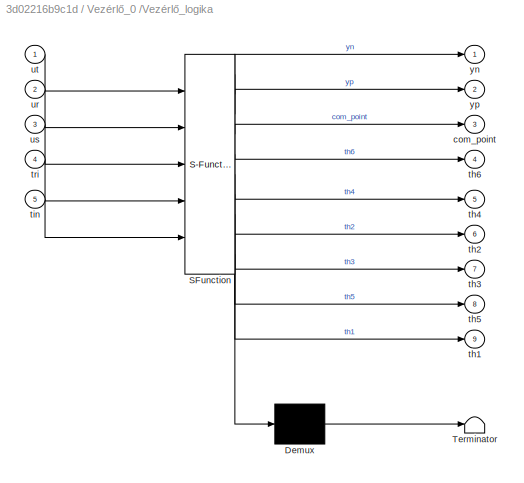
BLOCK [SubSystem] Vezérlő_0 /Vezérlő_logika 
  ErrorFcn = Stateflow.Translate.translate
  PermitHierarchicalResolution = ExplicitOnly
  Ports = [5, 9]
  RequestExecContextInheritance = off
  SFBlockType = Chart
  TreatAsAtomicUnit = on
  Variant = off
BLOCK [Demux] Vezérlő_0 /Vezérlő_logika / Demux 
  Outputs = 1
  Ports = [1, 1]
BLOCK [S-Function] Vezérlő_0 /Vezérlő_logika / SFunction 
  EnableBusSupport = on
  FunctionName = sf_sfun
  PortCounts = [5 10]
  Ports = [5, 10]
  SFcnIsStateOwnerBlock = off
  SFunctionDeploymentMode = off
  Tag = Stateflow S-Function lepes05_4_4_0421 4
BLOCK [Terminator] Vezérlő_0 /Vezérlő_logika / Terminator 
BLOCK [Outport] Vezérlő_0 /Vezérlő_logika /com_point
  IconDisplay = Port number
  Port = 3
BLOCK [Outport] Vezérlő_0 /Vezérlő_logika /th1
  IconDisplay = Port number
  Port = 9
BLOCK [Outport] Vezérlő_0 /Vezérlő_logika /th2
  IconDisplay = Port number
  Port = 6
BLOCK [Outport] Vezérlő_0 /Vezérlő_logika /th3
  IconDisplay = Port number
  Port = 7
BLOCK [Outport] Vezérlő_0 /Vezérlő_logika /th4
  IconDisplay = Port number
  Port = 5
BLOCK [Outport] Vezérlő_0 /Vezérlő_logika /th5
  IconDisplay = Port number
  Port = 8
BLOCK [Outport] Vezérlő_0 /Vezérlő_logika /th6
  IconDisplay = Port number
  Port = 4
BLOCK [Inport] Vezérlő_0 /Vezérlő_logika /tin
  IconDisplay = Port number
  Port = 5
BLOCK [Inport] Vezérlő_0 /Vezérlő_logika /tri
  IconDisplay = Port number
  Port = 4
BLOCK [Inport] Vezérlő_0 /Vezérlő_logika /ur
  IconDisplay = Port number
  Port = 2
BLOCK [Inport] Vezérlő_0 /Vezérlő_logika /us
  IconDisplay = Port number
  Port = 3
BLOCK [Inport] Vezérlő_0 /Vezérlő_logika /ut
  IconDisplay = Port number
BLOCK [Outport] Vezérlő_0 /Vezérlő_logika /yn
  IconDisplay = Port number
BLOCK [Outport] Vezérlő_0 /Vezérlő_logika /yp
  IconDisplay = Port number
  Port = 2
BLOCK [Outport] Vezérlő_0 /timer_out
  IconDisplay = Port number
BLOCK [Outport] Vezérlő_0 /yn
  IconDisplay = Port number
  Port = 2
BLOCK [Outport] Vezérlő_0 /yp 
  IconDisplay = Port number
  Port = 3
BLOCK [SubSystem] Vezérlő_1
  Ports = [4, 9]
  RequestExecContextInheritance = off
  Variant = off
BLOCK [Inport] Vezérlő_1/ALPHA
  IconDisplay = Port number
BLOCK [Outport] Vezérlő_1/Gate_Th1
  IconDisplay = Port number
BLOCK [Outport] Vezérlő_1/Gate_Th2 
  IconDisplay = Port number
  Port = 2
BLOCK [Outport] Vezérlő_1/Gate_Th3
  IconDisplay = Port number
  Port = 3
BLOCK [Outport] Vezérlő_1/Gate_Th4 
  IconDisplay = Port number
  Port = 4
BLOCK [Outport] Vezérlő_1/Gate_Th5
  IconDisplay = Port number
  Port = 5
BLOCK [Outport] Vezérlő_1/Gate_Th6 
  IconDisplay = Port number
  Port = 6
BLOCK [SubSystem] Vezérlő_1/Időzítő 
  MinAlgLoopOccurrences = on
  Ports = [2, 2]
  RequestExecContextInheritance = off
  SystemSampleTime = 1e-5
  TreatAsAtomicUnit = on
  Variant = off
BLOCK [Inport] Vezérlő_1/Időzítő /Alpha
  IconDisplay = Port number
BLOCK [Constant] Vezérlő_1/Időzítő /Constant
  SampleTime = -1
  Value = 1e-5
BLOCK [Constant] Vezérlő_1/Időzítő /Constant2
  Value = 0
BLOCK [Delay] Vezérlő_1/Időzítő /Delay
  DelayLength = 1
  InitialCondition = 0
  InputPortMap = u0
  Ports = [1, 1]
BLOCK [Delay] Vezérlő_1/Időzítő /Delay1
  DelayLength = 1
  InitialCondition = 0
  InputPortMap = u0
  Ports = [1, 1]
BLOCK [SubSystem] Vezérlő_1/Időzítő /Időzítő_logika 
  ErrorFcn = Stateflow.Translate.translate
  PermitHierarchicalResolution = ExplicitOnly
  Ports = [3, 2]
  RequestExecContextInheritance = off
  SFBlockType = Chart
  TreatAsAtomicUnit = on
  Variant = off
BLOCK [Demux] Vezérlő_1/Időzítő /Időzítő_logika / Demux 
  Outputs = 1
  Ports = [1, 1]
BLOCK [S-Function] Vezérlő_1/Időzítő /Időzítő_logika / SFunction 
  EnableBusSupport = on
  FunctionName = sf_sfun
  PortCounts = [3 3]
  Ports = [3, 3]
  SFcnIsStateOwnerBlock = off
  SFunctionDeploymentMode = off
  Tag = Stateflow S-Function lepes05_4_4_0421 5
BLOCK [Terminator] Vezérlő_1/Időzítő /Időzítő_logika / Terminator 
BLOCK [Inport] Vezérlő_1/Időzítő /Időzítő_logika /alpha_t
  IconDisplay = Port number
  Port = 2
BLOCK [Inport] Vezérlő_1/Időzítő /Időzítő_logika /com_point
  IconDisplay = Port number
  Port = 3
BLOCK [Inport] Vezérlő_1/Időzítő /Időzítő_logika /tin
  IconDisplay = Port number
BLOCK [Outport] Vezérlő_1/Időzítő /Időzítő_logika /tri
  IconDisplay = Port number
  Port = 2
BLOCK [Outport] Vezérlő_1/Időzítő /Időzítő_logika /y
  IconDisplay = Port number
BLOCK [MultiPortSwitch] Vezérlő_1/Időzítő /Index Vector1
  DataPortOrder = Zero-based contiguous
  InputSameDT = off
  Inputs = 2
  Ports = [3, 1]
  SaturateOnIntegerOverflow = off
  zeroidx = on
BLOCK [SubSystem] Vezérlő_1/Időzítő /MATLAB Function
  ErrorFcn = Stateflow.Translate.translate
  PermitHierarchicalResolution = ExplicitOnly
  Ports = [1, 1]
  RequestExecContextInheritance = off
  SFBlockType = MATLAB Function
  TreatAsAtomicUnit = on
  Variant = off
BLOCK [Demux] Vezérlő_1/Időzítő /MATLAB Function/ Demux 
  Outputs = 1
  Ports = [1, 1]
BLOCK [S-Function] Vezérlő_1/Időzítő /MATLAB Function/ SFunction 
  EnableBusSupport = on
  FunctionName = sf_sfun
  PortCounts = [1 2]
  Ports = [1, 2]
  SFcnIsStateOwnerBlock = off
  SFunctionDeploymentMode = off
  Tag = Stateflow S-Function lepes05_4_4_0421 6
BLOCK [Terminator] Vezérlő_1/Időzítő /MATLAB Function/ Terminator 
BLOCK [Inport] Vezérlő_1/Időzítő /MATLAB Function/u
  IconDisplay = Port number
BLOCK [Outport] Vezérlő_1/Időzítő /MATLAB Function/y
  IconDisplay = Port number
BLOCK [Scope] Vezérlő_1/Időzítő /Scope
  NumInputPorts = 3
  Ports = [3]
  ScopeSpecificationString = Simulink.scopes.TimeScopeBlockCfg('CurrentConfiguration', extmgr.ConfigurationSet(extmgr.Configuration('Core','General UI',true),extmgr.Configuration('Core','Source UI',true),extmgr.Configuration('Sources','WiredSimulink',true,'DataLoggingVariableName','ScopeData1'),extmgr.Configuration('Visuals','Time Domain',true,'SerializedDisplays',{struct('MinYLimReal','-0.00063','MaxYLimReal','0.00567','YLab...<+2837ch>
BLOCK [Gain] Vezérlő_1/Időzítő /Skálázó
  Gain = 20*(1e-3)/360
  OutDataTypeStr = Inherit: Inherit via internal rule
  ParamDataTypeStr = Inherit: Inherit via internal rule
  SaturateOnIntegerOverflow = off
BLOCK [Sum] Vezérlő_1/Időzítő /Sum
  IconShape = round
  InputSameDT = off
  Inputs = |++
  OutDataTypeStr = Inherit: Inherit via internal rule
  Ports = [2, 1]
  SaturateOnIntegerOverflow = off
BLOCK [Inport] Vezérlő_1/Időzítő /com_point
  IconDisplay = Port number
  Port = 2
BLOCK [Outport] Vezérlő_1/Időzítő /t_in 
  IconDisplay = Port number
  Port = 2
BLOCK [Outport] Vezérlő_1/Időzítő /tri
  IconDisplay = Port number
BLOCK [Inport] Vezérlő_1/Ur
  IconDisplay = Port number
  Port = 2
BLOCK [Inport] Vezérlő_1/Us
  IconDisplay = Port number
  Port = 3
BLOCK [Inport] Vezérlő_1/Ut
  IconDisplay = Port number
  Port = 4
BLOCK [SubSystem] Vezérlő_1/Vezérlő_logika 
  ErrorFcn = Stateflow.Translate.translate
  PermitHierarchicalResolution = ExplicitOnly
  Ports = [5, 9]
  RequestExecContextInheritance = off
  SFBlockType = Chart
  TreatAsAtomicUnit = on
  Variant = off
BLOCK [Demux] Vezérlő_1/Vezérlő_logika / Demux 
  Outputs = 1
  Ports = [1, 1]
BLOCK [S-Function] Vezérlő_1/Vezérlő_logika / SFunction 
  EnableBusSupport = on
  FunctionName = sf_sfun
  PortCounts = [5 10]
  Ports = [5, 10]
  SFcnIsStateOwnerBlock = off
  SFunctionDeploymentMode = off
  Tag = Stateflow S-Function lepes05_4_4_0421 7
BLOCK [Terminator] Vezérlő_1/Vezérlő_logika / Terminator 
BLOCK [Outport] Vezérlő_1/Vezérlő_logika /com_point
  IconDisplay = Port number
  Port = 3
BLOCK [Outport] Vezérlő_1/Vezérlő_logika /th1
  IconDisplay = Port number
  Port = 9
BLOCK [Outport] Vezérlő_1/Vezérlő_logika /th2
  IconDisplay = Port number
  Port = 6
BLOCK [Outport] Vezérlő_1/Vezérlő_logika /th3
  IconDisplay = Port number
  Port = 7
BLOCK [Outport] Vezérlő_1/Vezérlő_logika /th4
  IconDisplay = Port number
  Port = 5
BLOCK [Outport] Vezérlő_1/Vezérlő_logika /th5
  IconDisplay = Port number
  Port = 8
BLOCK [Outport] Vezérlő_1/Vezérlő_logika /th6
  IconDisplay = Port number
  Port = 4
BLOCK [Inport] Vezérlő_1/Vezérlő_logika /tin
  IconDisplay = Port number
  Port = 5
BLOCK [Inport] Vezérlő_1/Vezérlő_logika /tri
  IconDisplay = Port number
  Port = 4
BLOCK [Inport] Vezérlő_1/Vezérlő_logika /ur
  IconDisplay = Port number
  Port = 2
BLOCK [Inport] Vezérlő_1/Vezérlő_logika /us
  IconDisplay = Port number
  Port = 3
BLOCK [Inport] Vezérlő_1/Vezérlő_logika /ut
  IconDisplay = Port number
BLOCK [Outport] Vezérlő_1/Vezérlő_logika /yn
  IconDisplay = Port number
BLOCK [Outport] Vezérlő_1/Vezérlő_logika /yp
  IconDisplay = Port number
  Port = 2
BLOCK [Outport] Vezérlő_1/timer_out
  IconDisplay = Port number
  Port = 7
BLOCK [Outport] Vezérlő_1/yn
  IconDisplay = Port number
  Port = 8
BLOCK [Outport] Vezérlő_1/yp 
  IconDisplay = Port number
  Port = 9
BLOCK [SubSystem] Vezérlő_teszt_0
  Ports = [7]
  RequestExecContextInheritance = off
  Variant = off
BLOCK [Constant] Vezérlő_teszt_0/Constant1
  Value = 0
BLOCK [Constant] Vezérlő_teszt_0/Constant2
  Value = 0
BLOCK [Constant] Vezérlő_teszt_0/Constant3
  Value = 162*sqrt(3)
BLOCK [SubSystem] Vezérlő_teszt_0/MATLAB Function
  ErrorFcn = Stateflow.Translate.translate
  PermitHierarchicalResolution = ExplicitOnly
  Ports = [2, 1]
  RequestExecContextInheritance = off
  SFBlockType = MATLAB Function
  TreatAsAtomicUnit = on
  Variant = off
BLOCK [Demux] Vezérlő_teszt_0/MATLAB Function/ Demux 
  Outputs = 1
  Ports = [1, 1]
BLOCK [S-Function] Vezérlő_teszt_0/MATLAB Function/ SFunction 
  EnableBusSupport = on
  FunctionName = sf_sfun
  PortCounts = [2 2]
  Ports = [2, 2]
  SFcnIsStateOwnerBlock = off
  SFunctionDeploymentMode = off
  Tag = Stateflow S-Function lepes05_4_4_0421 1
BLOCK [Terminator] Vezérlő_teszt_0/MATLAB Function/ Terminator 
BLOCK [Inport] Vezérlő_teszt_0/MATLAB Function/alpha
  IconDisplay = Port number
  Port = 2
BLOCK [Inport] Vezérlő_teszt_0/MATLAB Function/u
  IconDisplay = Port number
BLOCK [Outport] Vezérlő_teszt_0/MATLAB Function/y
  IconDisplay = Port number
BLOCK [Scope] Vezérlő_teszt_0/Scope
  NumInputPorts = 1
  Ports = [1]
  ScopeSpecificationString = Simulink.scopes.TimeScopeBlockCfg('CurrentConfiguration', extmgr.ConfigurationSet(extmgr.Configuration('Core','General UI',true),extmgr.Configuration('Core','Source UI',true),extmgr.Configuration('Sources','WiredSimulink',true,'DataLoggingVariableName','ScopeData1'),extmgr.Configuration('Visuals','Time Domain',true,'SerializedDisplays',{struct('MinYLimReal','-35.07403','MaxYLimReal','315.66626','Y...<+1747ch>
BLOCK [Scope] Vezérlő_teszt_0/Scope1
  NumInputPorts = 4
  Ports = [4]
  ScopeSpecificationString = Simulink.scopes.TimeScopeBlockCfg('CurrentConfiguration', extmgr.ConfigurationSet(extmgr.Configuration('Core','General UI',true),extmgr.Configuration('Core','Source UI',true),extmgr.Configuration('Sources','WiredSimulink',true,'DataLoggingVariableName','ScopeData3'),extmgr.Configuration('Visuals','Time Domain',true,'SerializedDisplays',{struct('MinYLimReal','-217.32403','MaxYLimReal','335.91626','...<+1490ch>
BLOCK [Scope] Vezérlő_teszt_0/Scope2
  NumInputPorts = 1
  Ports = [1]
  ScopeSpecificationString = Simulink.scopes.TimeScopeBlockCfg('CurrentConfiguration', extmgr.ConfigurationSet(extmgr.Configuration('Core','General UI',true),extmgr.Configuration('Core','Source UI',true),extmgr.Configuration('Sources','WiredSimulink',true,'DataLoggingVariableName','ScopeData5'),extmgr.Configuration('Visuals','Time Domain',true),extmgr.Configuration('Tools','Plot Navigation',true),extmgr.Configuration('Tools',...<+40ch>
BLOCK [Sum] Vezérlő_teszt_0/Sum
  IconShape = round
  InputSameDT = off
  Inputs = |+-
  OutDataTypeStr = Inherit: Inherit via internal rule
  Ports = [2, 1]
  SaturateOnIntegerOverflow = off
BLOCK [Inport] Vezérlő_teszt_0/Timer_in 
  IconDisplay = Port number
  Port = 5
BLOCK [MultiPortSwitch] Vezérlő_teszt_0/YN
  InputSameDT = off
  Inputs = 4
  Ports = [5, 1]
  SaturateOnIntegerOverflow = off
BLOCK [MultiPortSwitch] Vezérlő_teszt_0/YP 
  InputSameDT = off
  Inputs = 4
  Ports = [5, 1]
  SaturateOnIntegerOverflow = off
BLOCK [Inport] Vezérlő_teszt_0/alpha 
  IconDisplay = Port number
  Port = 4
BLOCK [Inport] Vezérlő_teszt_0/ur
  IconDisplay = Port number
BLOCK [Inport] Vezérlő_teszt_0/us
  IconDisplay = Port number
  Port = 2
BLOCK [Inport] Vezérlő_teszt_0/ut 
  IconDisplay = Port number
  Port = 3
BLOCK [Inport] Vezérlő_teszt_0/yn 
  IconDisplay = Port number
  Port = 6
BLOCK [Inport] Vezérlő_teszt_0/yp 
  IconDisplay = Port number
  Port = 7
BLOCK [Scope] Vezérlő_teszt_0/Átlag_fesz_összehasonlító 
  NumInputPorts = 2
  Ports = [2]
  ScopeSpecificationString = Simulink.scopes.TimeScopeBlockCfg('CurrentConfiguration', extmgr.ConfigurationSet(extmgr.Configuration('Core','General UI',true),extmgr.Configuration('Core','Source UI',true),extmgr.Configuration('Sources','WiredSimulink',true,'DataLoggingVariableName','ScopeData2'),extmgr.Configuration('Visuals','Time Domain',true,'SerializedDisplays',{struct('MinYLimReal','10.31445','MaxYLimReal','269.64679','YL...<+1814ch>
BLOCK [Scope] Vezérlő_teszt_0/Átlag_feszüétség 
  NumInputPorts = 1
  Ports = [1]
  ScopeSpecificationString = Simulink.scopes.TimeScopeBlockCfg('CurrentConfiguration', extmgr.ConfigurationSet(extmgr.Configuration('Core','General UI',true),extmgr.Configuration('Core','Source UI',true),extmgr.Configuration('Sources','WiredSimulink',true,'DataLoggingVariableName','ScopeData4'),extmgr.Configuration('Visuals','Time Domain',true,'SerializedDisplays',{struct('MinYLimReal','-31.2957','MaxYLimReal','281.66133','YL...<+1459ch>
BLOCK [SubSystem] Vezérlő_teszt_0/Átlagfeszültség mérő
  Ports = [1, 1]
  RequestExecContextInheritance = off
  Variant = off
BLOCK [Constant] Vezérlő_teszt_0/Átlagfeszültség mérő/Constant
  SampleTime = -1
BLOCK [Inport] Vezérlő_teszt_0/Átlagfeszültség mérő/DC_feszültség 
  IconDisplay = Port number
BLOCK [Delay] Vezérlő_teszt_0/Átlagfeszültség mérő/Delay
  DelayLength = 1
  InitialCondition = 0
  InputPortMap = u0
  Ports = [1, 1]
BLOCK [Delay] Vezérlő_teszt_0/Átlagfeszültség mérő/Delay1
  DelayLength = 1
  InitialCondition = 0
  InputPortMap = u0
  Ports = [1, 1]
BLOCK [Product] Vezérlő_teszt_0/Átlagfeszültség mérő/Divide
  InputSameDT = off
  Inputs = */
  OutDataTypeStr = Inherit: Inherit via internal rule
  Ports = [2, 1]
  RndMeth = Floor
  SaturateOnIntegerOverflow = off
BLOCK [Sum] Vezérlő_teszt_0/Átlagfeszültség mérő/Sum1
  IconShape = round
  InputSameDT = off
  Inputs = |++
  OutDataTypeStr = Inherit: Inherit via internal rule
  Ports = [2, 1]
  SaturateOnIntegerOverflow = off
BLOCK [Sum] Vezérlő_teszt_0/Átlagfeszültség mérő/Sum2
  IconShape = round
  InputSameDT = off
  Inputs = |++
  OutDataTypeStr = Inherit: Inherit via internal rule
  Ports = [2, 1]
  SaturateOnIntegerOverflow = off
BLOCK [Outport] Vezérlő_teszt_0/Átlagfeszültség mérő/Átlag_feszültség 
  IconDisplay = Port number
BLOCK [SubSystem] Vezérlő_teszt_1
  Ports = [7]
  RequestExecContextInheritance = off
  Variant = off
BLOCK [Constant] Vezérlő_teszt_1/Constant1
  Value = 0
BLOCK [Constant] Vezérlő_teszt_1/Constant2
  Value = 0
BLOCK [Constant] Vezérlő_teszt_1/Constant3
  Value = 162*sqrt(3)
BLOCK [SubSystem] Vezérlő_teszt_1/MATLAB Function
  ErrorFcn = Stateflow.Translate.translate
  PermitHierarchicalResolution = ExplicitOnly
  Ports = [2, 1]
  RequestExecContextInheritance = off
  SFBlockType = MATLAB Function
  TreatAsAtomicUnit = on
  Variant = off
BLOCK [Demux] Vezérlő_teszt_1/MATLAB Function/ Demux 
  Outputs = 1
  Ports = [1, 1]
BLOCK [S-Function] Vezérlő_teszt_1/MATLAB Function/ SFunction 
  EnableBusSupport = on
  FunctionName = sf_sfun
  PortCounts = [2 2]
  Ports = [2, 2]
  SFcnIsStateOwnerBlock = off
  SFunctionDeploymentMode = off
  Tag = Stateflow S-Function lepes05_4_4_0421 8
BLOCK [Terminator] Vezérlő_teszt_1/MATLAB Function/ Terminator 
BLOCK [Inport] Vezérlő_teszt_1/MATLAB Function/alpha
  IconDisplay = Port number
  Port = 2
BLOCK [Inport] Vezérlő_teszt_1/MATLAB Function/u
  IconDisplay = Port number
BLOCK [Outport] Vezérlő_teszt_1/MATLAB Function/y
  IconDisplay = Port number
BLOCK [Scope] Vezérlő_teszt_1/Scope
  NumInputPorts = 1
  Ports = [1]
  ScopeSpecificationString = Simulink.scopes.TimeScopeBlockCfg('CurrentConfiguration', extmgr.ConfigurationSet(extmgr.Configuration('Core','General UI',true),extmgr.Configuration('Core','Source UI',true),extmgr.Configuration('Sources','WiredSimulink',true,'DataLoggingVariableName','ScopeData1'),extmgr.Configuration('Visuals','Time Domain',true,'SerializedDisplays',{struct('MinYLimReal','-35.07403','MaxYLimReal','315.66626','Y...<+1747ch>
BLOCK [Scope] Vezérlő_teszt_1/Scope1
  NumInputPorts = 4
  Ports = [4]
  ScopeSpecificationString = Simulink.scopes.TimeScopeBlockCfg('CurrentConfiguration', extmgr.ConfigurationSet(extmgr.Configuration('Core','General UI',true),extmgr.Configuration('Core','Source UI',true),extmgr.Configuration('Sources','WiredSimulink',true,'DataLoggingVariableName','ScopeData3'),extmgr.Configuration('Visuals','Time Domain',true,'SerializedDisplays',{struct('MinYLimReal','-217.32403','MaxYLimReal','335.91626','...<+1487ch>
BLOCK [Scope] Vezérlő_teszt_1/Scope2
  NumInputPorts = 1
  Ports = [1]
  ScopeSpecificationString = Simulink.scopes.TimeScopeBlockCfg('CurrentConfiguration', extmgr.ConfigurationSet(extmgr.Configuration('Core','General UI',true),extmgr.Configuration('Core','Source UI',true),extmgr.Configuration('Sources','WiredSimulink',true,'DataLoggingVariableName','ScopeData5'),extmgr.Configuration('Visuals','Time Domain',true),extmgr.Configuration('Tools','Plot Navigation',true),extmgr.Configuration('Tools',...<+40ch>
BLOCK [Sum] Vezérlő_teszt_1/Sum
  IconShape = round
  InputSameDT = off
  Inputs = |+-
  OutDataTypeStr = Inherit: Inherit via internal rule
  Ports = [2, 1]
  SaturateOnIntegerOverflow = off
BLOCK [Inport] Vezérlő_teszt_1/Timer_in 
  IconDisplay = Port number
BLOCK [MultiPortSwitch] Vezérlő_teszt_1/YN
  InputSameDT = off
  Inputs = 4
  Ports = [5, 1]
  SaturateOnIntegerOverflow = off
BLOCK [MultiPortSwitch] Vezérlő_teszt_1/YP 
  InputSameDT = off
  Inputs = 4
  Ports = [5, 1]
  SaturateOnIntegerOverflow = off
BLOCK [Inport] Vezérlő_teszt_1/alpha 
  IconDisplay = Port number
  Port = 7
BLOCK [Inport] Vezérlő_teszt_1/ur
  IconDisplay = Port number
  Port = 4
BLOCK [Inport] Vezérlő_teszt_1/us
  IconDisplay = Port number
  Port = 5
BLOCK [Inport] Vezérlő_teszt_1/ut 
  IconDisplay = Port number
  Port = 6
BLOCK [Inport] Vezérlő_teszt_1/yn 
  IconDisplay = Port number
  Port = 2
BLOCK [Inport] Vezérlő_teszt_1/yp 
  IconDisplay = Port number
  Port = 3
BLOCK [Scope] Vezérlő_teszt_1/Átlag_fesz_összehasonlító 
  NumInputPorts = 2
  Ports = [2]
  ScopeSpecificationString = Simulink.scopes.TimeScopeBlockCfg('CurrentConfiguration', extmgr.ConfigurationSet(extmgr.Configuration('Core','General UI',true),extmgr.Configuration('Core','Source UI',true),extmgr.Configuration('Sources','WiredSimulink',true,'DataLoggingVariableName','ScopeData2'),extmgr.Configuration('Visuals','Time Domain',true,'SerializedDisplays',{struct('MinYLimReal','-275.8995','MaxYLimReal','274.53148','Y...<+1816ch>
BLOCK [Scope] Vezérlő_teszt_1/Átlag_feszüétség 
  NumInputPorts = 1
  Ports = [1]
  ScopeSpecificationString = Simulink.scopes.TimeScopeBlockCfg('CurrentConfiguration', extmgr.ConfigurationSet(extmgr.Configuration('Core','General UI',true),extmgr.Configuration('Core','Source UI',true),extmgr.Configuration('Sources','WiredSimulink',true,'DataLoggingVariableName','ScopeData4'),extmgr.Configuration('Visuals','Time Domain',true,'SerializedDisplays',{struct('MinYLimReal','-31.2957','MaxYLimReal','281.66133','YL...<+1459ch>
BLOCK [SubSystem] Vezérlő_teszt_1/Átlagfeszültség mérő
  Ports = [1, 1]
  RequestExecContextInheritance = off
  Variant = off
BLOCK [Constant] Vezérlő_teszt_1/Átlagfeszültség mérő/Constant
  SampleTime = -1
BLOCK [Inport] Vezérlő_teszt_1/Átlagfeszültség mérő/DC_feszültség 
  IconDisplay = Port number
BLOCK [Delay] Vezérlő_teszt_1/Átlagfeszültség mérő/Delay
  DelayLength = 1
  InitialCondition = 0
  InputPortMap = u0
  Ports = [1, 1]
BLOCK [Delay] Vezérlő_teszt_1/Átlagfeszültség mérő/Delay1
  DelayLength = 1
  InitialCondition = 0
  InputPortMap = u0
  Ports = [1, 1]
BLOCK [Product] Vezérlő_teszt_1/Átlagfeszültség mérő/Divide
  InputSameDT = off
  Inputs = */
  OutDataTypeStr = Inherit: Inherit via internal rule
  Ports = [2, 1]
  RndMeth = Floor
  SaturateOnIntegerOverflow = off
BLOCK [Sum] Vezérlő_teszt_1/Átlagfeszültség mérő/Sum1
  IconShape = round
  InputSameDT = off
  Inputs = |++
  OutDataTypeStr = Inherit: Inherit via internal rule
  Ports = [2, 1]
  SaturateOnIntegerOverflow = off
BLOCK [Sum] Vezérlő_teszt_1/Átlagfeszültség mérő/Sum2
  IconShape = round
  InputSameDT = off
  Inputs = |++
  OutDataTypeStr = Inherit: Inherit via internal rule
  Ports = [2, 1]
  SaturateOnIntegerOverflow = off
BLOCK [Outport] Vezérlő_teszt_1/Átlagfeszültség mérő/Átlag_feszültség 
  IconDisplay = Port number
BLOCK [Sin] ur_162V
  Amplitude = 162
  Frequency = 50*2*pi
  Phase = (2/3*pi)+(pi/2)
  Ports = [0, 1]
  SampleTime = 0
BLOCK [Sin] ur_325V 
  Amplitude = 325
  Frequency = 50*2*pi
  Phase = (2/3*pi)
  Ports = [0, 1]
  SampleTime = 0
BLOCK [Sin] us_162V
  Amplitude = 162
  Frequency = 50*2*pi
  Phase = 0+(pi/2)
  Ports = [0, 1]
  SampleTime = 0
BLOCK [Sin] us_325V
  Amplitude = 325
  Frequency = 50*2*pi
  Ports = [0, 1]
  SampleTime = 0
BLOCK [Sin] ut_162V
  Amplitude = 162
  Frequency = 50*2*pi
  Phase = (4/3*pi)+(pi/2)
  Ports = [0, 1]
  SampleTime = 0
BLOCK [Sin] ut_325V
  Amplitude = 325
  Frequency = 50*2*pi
  Phase = (4/3)*pi
  Ports = [0, 1]
  SampleTime = 0
LINE Constant1:1 -> Sum:2
LINE Constant:1 -> Goto:1
LINE From10:1 -> Gépcsoport :10
LINE From11:1 -> Gépcsoport :9
LINE From12:1 -> Gépcsoport :8
LINE From13:1 -> Gépcsoport :7
LINE From14:1 -> Vezérlő_teszt_0:3
LINE From15:1 -> Vezérlő_teszt_0:2
LINE From16:1 -> Vezérlő_teszt_0:1
LINE From17:1 -> Vezérlő_teszt_0:4
LINE From18:1 -> Vezérlő_teszt_1:6
LINE From19:1 -> Vezérlő_teszt_1:5
LINE From1:1 -> Vezérlő_1:4
LINE From20:1 -> Vezérlő_teszt_1:4
LINE From21:1 -> Vezérlő_teszt_1:7
LINE From2:1 -> Vezérlő_1:3
LINE From3:1 -> Vezérlő_1:2
LINE From4:1 -> Vezérlő_0 :4
LINE From5:1 -> Vezérlő_0 :3
LINE From6:1 -> Vezérlő_0 :2
LINE From7:1 -> Vezérlő_0 :1
LINE From8:1 -> Gépcsoport :12
LINE From9:1 -> Gépcsoport :11
LINE From:1 -> Sum:1
LINE Gépcsoport /Aszinkron gép:1 -> Gépcsoport /Bus Selector:1
LINE Gépcsoport /Bus Selector1:1 -> Gépcsoport /Goto2:1
LINE Gépcsoport /Bus Selector1:2 -> Gépcsoport /Goto3:1
LINE Gépcsoport /Bus Selector2:1 -> Gépcsoport /Scope:2
LINE Gépcsoport /Bus Selector2:2 -> Gépcsoport /Scope:3
LINE Gépcsoport /Bus Selector3:1 -> Gépcsoport /Scope:5
LINE Gépcsoport /Bus Selector3:2 -> Gépcsoport /Scope:6
LINE Gépcsoport /Bus Selector4:1 -> Gépcsoport /Scope:8
LINE Gépcsoport /Bus Selector4:2 -> Gépcsoport /Scope:9
LINE Gépcsoport /Bus Selector:1 -> Gépcsoport /Goto5:1
LINE Gépcsoport /Bus Selector:2 -> Gépcsoport /Goto6:1
LINE Gépcsoport /Current Measurement1:1 -> Gépcsoport /Goto1:1
LINE Gépcsoport /Current Measurement:1 -> Gépcsoport /Goto4:1
LINE Gépcsoport /DC gép:1 -> Gépcsoport /Bus Selector1:1
LINE Gépcsoport /From10:1 -> Gépcsoport /Scope2:3
LINE Gépcsoport /From11:1 -> Gépcsoport /Scope3:3
LINE Gépcsoport /From12:1 -> Gépcsoport /Mux1:1
LINE Gépcsoport /From13:1 -> Gépcsoport /Mux1:2
LINE Gépcsoport /From14:1 -> Gépcsoport /Mux:1
LINE Gépcsoport /From15:1 -> Gépcsoport /Mux:2
LINE Gépcsoport /From16:1 -> Gépcsoport /Mux:3
LINE Gépcsoport /From17:1 -> Gépcsoport /Scope2:4
LINE Gépcsoport /From18:1 -> Gépcsoport /Scope2:9
LINE Gépcsoport /From19:1 -> Gépcsoport /Scope2:8
NET Gépcsoport /From1:1 -> Gépcsoport /Aszinkron_nyomaték :1, Gépcsoport /To Workspace1:1
LINE Gépcsoport /From20:1 -> Gépcsoport /Scope2:7
LINE Gépcsoport /From21:1 -> Gépcsoport /Scope2:6
LINE Gépcsoport /From22:1 -> Gépcsoport /Scope2:5
LINE Gépcsoport /From23:1 -> Gépcsoport /Mux1:3
LINE Gépcsoport /From24:1 -> Gépcsoport /Scope3:4
LINE Gépcsoport /From25:1 -> Gépcsoport /Scope3:9
LINE Gépcsoport /From26:1 -> Gépcsoport /Scope3:8
LINE Gépcsoport /From27:1 -> Gépcsoport /Scope3:7
LINE Gépcsoport /From28:1 -> Gépcsoport /Scope3:6
LINE Gépcsoport /From29:1 -> Gépcsoport /Scope3:5
NET Gépcsoport /From2:1 -> Gépcsoport /DC_nyomaték :1, Gépcsoport /To Workspace8:1, Gépcsoport /Átlagoló :1
LINE Gépcsoport /From30:1 -> Gépcsoport /Scope3:2
LINE Gépcsoport /From31:1 -> Gépcsoport /Scope:1
LINE Gépcsoport /From32:1 -> Gépcsoport /Scope:4
LINE Gépcsoport /From33:1 -> Gépcsoport /Scope:7
NET Gépcsoport /From3:1 -> Gépcsoport /DC_sebesség :1, Gépcsoport /To Workspace10:1
NET Gépcsoport /From4:1 -> Gépcsoport /DC_áram :1, Gépcsoport /To Workspace4:1, Gépcsoport /Átlagoló:1
NET Gépcsoport /From5:1 -> Gépcsoport /Aszinkron_áram:1, Gépcsoport /To Workspace2:1, Gépcsoport /Átlagoló2:1
NET Gépcsoport /From6:1 -> Gépcsoport /Aszinkron_sebesség :1, Gépcsoport /To Workspace:1
LINE Gépcsoport /From7:1 -> Gépcsoport /Gain:1
LINE Gépcsoport /From8:1 -> Gépcsoport /Scope2:2
LINE Gépcsoport /From9:1 -> Gépcsoport /Aszinkron gép:1
NET Gépcsoport /From:1 -> Gépcsoport /DC_feszültség :1, Gépcsoport /To Workspace6:1, Gépcsoport /Átlagoló1:1
LINE Gépcsoport /Gain:1 -> Gépcsoport /DC gép:1
NET Gépcsoport /Gate_Th1_0 :1 -> Gépcsoport /Goto8:1, Gépcsoport /Thyristor1:1
NET Gépcsoport /Gate_Th1_1:1 -> Gépcsoport /Goto19:1, Gépcsoport /Thyristor10:1
NET Gépcsoport /Gate_Th2_0:1 -> Gépcsoport /Goto9:1, Gépcsoport /Thyristor2:1
NET Gépcsoport /Gate_Th2_1:1 -> Gépcsoport /Goto20:1, Gépcsoport /Thyristor7:1
NET Gépcsoport /Gate_Th3_0:1 -> Gépcsoport /Goto13:1, Gépcsoport /Thyristor3:1
NET Gépcsoport /Gate_Th3_1:1 -> Gépcsoport /Goto21:1, Gépcsoport /Thyristor11:1
NET Gépcsoport /Gate_Th4_0:1 -> Gépcsoport /Goto10:1, Gépcsoport /Thyristor4:1
NET Gépcsoport /Gate_Th4_1:1 -> Gépcsoport /Goto16:1, Gépcsoport /Thyristor8:1
NET Gépcsoport /Gate_Th5_0:1 -> Gépcsoport /Goto11:1, Gépcsoport /Thyristor5:1
NET Gépcsoport /Gate_Th5_1:1 -> Gépcsoport /Goto17:1, Gépcsoport /Thyristor12:1
NET Gépcsoport /Gate_Th6_0:1 -> Gépcsoport /Goto12:1, Gépcsoport /Thyristor6:1
NET Gépcsoport /Gate_Th6_1:1 -> Gépcsoport /Goto18:1, Gépcsoport /Thyristor9:1
LINE Gépcsoport /Mux1:1 -> Gépcsoport /Scope3:1
LINE Gépcsoport /Mux:1 -> Gépcsoport /Scope2:1
LINE Gépcsoport /Thyristor10:1 -> Gépcsoport /Bus Selector4:1
LINE Gépcsoport /Thyristor11:1 -> Gépcsoport /Bus Selector3:1
LINE Gépcsoport /Thyristor12:1 -> Gépcsoport /Bus Selector2:1
NET Gépcsoport /Ur_162V :1 -> Gépcsoport /Controlled Voltage Source:1, Gépcsoport /Goto7:1
LINE Gépcsoport /Ur_325V:1 -> Gépcsoport /Controlled Voltage Source3:1
NET Gépcsoport /Us_162V:1 -> Gépcsoport /Controlled Voltage Source1:1, Gépcsoport /Goto14:1
LINE Gépcsoport /Us_325V:1 -> Gépcsoport /Controlled Voltage Source4:1
NET Gépcsoport /Ut_162V:1 -> Gépcsoport /Controlled Voltage Source2:1, Gépcsoport /Goto15:1
LINE Gépcsoport /Ut_325V :1 -> Gépcsoport /Controlled Voltage Source5:1
LINE Gépcsoport /Voltage Measurement7:1 -> Gépcsoport /Goto:1
LINE Gépcsoport /Átlagoló /Constant:1 -> Gépcsoport /Átlagoló /Sum2:1
LINE Gépcsoport /Átlagoló /Delay1:1 -> Gépcsoport /Átlagoló /Sum2:2
LINE Gépcsoport /Átlagoló /Delay:1 -> Gépcsoport /Átlagoló /Sum1:2
LINE Gépcsoport /Átlagoló /Divide:1 -> Gépcsoport /Átlagoló /Átlag_nyomaték:1
LINE Gépcsoport /Átlagoló /Nyomaték :1 -> Gépcsoport /Átlagoló /Sum1:1
NET Gépcsoport /Átlagoló /Sum1:1 -> Gépcsoport /Átlagoló /Delay:1, Gépcsoport /Átlagoló /Divide:1
NET Gépcsoport /Átlagoló /Sum2:1 -> Gépcsoport /Átlagoló /Delay1:1, Gépcsoport /Átlagoló /Divide:2
NET Gépcsoport /Átlagoló :1 -> Gépcsoport /DC_átlag_nyomaték :1, Gépcsoport /To Workspace9:1
LINE Gépcsoport /Átlagoló/Constant:1 -> Gépcsoport /Átlagoló/Sum2:1
LINE Gépcsoport /Átlagoló/Delay1:1 -> Gépcsoport /Átlagoló/Sum2:2
LINE Gépcsoport /Átlagoló/Delay:1 -> Gépcsoport /Átlagoló/Sum1:2
LINE Gépcsoport /Átlagoló/Divide:1 -> Gépcsoport /Átlagoló/Átlag_áram:1
NET Gépcsoport /Átlagoló/Sum1:1 -> Gépcsoport /Átlagoló/Delay:1, Gépcsoport /Átlagoló/Divide:1
NET Gépcsoport /Átlagoló/Sum2:1 -> Gépcsoport /Átlagoló/Delay1:1, Gépcsoport /Átlagoló/Divide:2
LINE Gépcsoport /Átlagoló/Áram :1 -> Gépcsoport /Átlagoló/Sum1:1
LINE Gépcsoport /Átlagoló1/Constant:1 -> Gépcsoport /Átlagoló1/Sum2:1
LINE Gépcsoport /Átlagoló1/Delay1:1 -> Gépcsoport /Átlagoló1/Sum2:2
LINE Gépcsoport /Átlagoló1/Delay:1 -> Gépcsoport /Átlagoló1/Sum1:2
LINE Gépcsoport /Átlagoló1/Divide:1 -> Gépcsoport /Átlagoló1/Átlag_fesz.:1
LINE Gépcsoport /Átlagoló1/Fesz. :1 -> Gépcsoport /Átlagoló1/Sum1:1
NET Gépcsoport /Átlagoló1/Sum1:1 -> Gépcsoport /Átlagoló1/Delay:1, Gépcsoport /Átlagoló1/Divide:1
NET Gépcsoport /Átlagoló1/Sum2:1 -> Gépcsoport /Átlagoló1/Delay1:1, Gépcsoport /Átlagoló1/Divide:2
NET Gépcsoport /Átlagoló1:1 -> Gépcsoport /DC_átlag_feszültség:1, Gépcsoport /To Workspace7:1
LINE Gépcsoport /Átlagoló2/Constant:1 -> Gépcsoport /Átlagoló2/Sum2:1
LINE Gépcsoport /Átlagoló2/Delay1:1 -> Gépcsoport /Átlagoló2/Sum2:2
LINE Gépcsoport /Átlagoló2/Delay:1 -> Gépcsoport /Átlagoló2/Sum1:2
LINE Gépcsoport /Átlagoló2/Divide:1 -> Gépcsoport /Átlagoló2/Átlag_áram:1
NET Gépcsoport /Átlagoló2/Sum1:1 -> Gépcsoport /Átlagoló2/Delay:1, Gépcsoport /Átlagoló2/Divide:1
NET Gépcsoport /Átlagoló2/Sum2:1 -> Gépcsoport /Átlagoló2/Delay1:1, Gépcsoport /Átlagoló2/Divide:2
LINE Gépcsoport /Átlagoló2/Áram :1 -> Gépcsoport /Átlagoló2/Sum1:1
NET Gépcsoport /Átlagoló2:1 -> Gépcsoport /Aszinkron_átlag_áram:1, Gépcsoport /To Workspace3:1
NET Gépcsoport /Átlagoló:1 -> Gépcsoport /DC_átlag_áram:1, Gépcsoport /To Workspace5:1
LINE Sum:1 -> Vezérlő_1:1
NET Vezérlő_0 /ALPHA:1 -> Vezérlő_0 /Időzítő :1, Vezérlő_0 /Vezérlő_logika :5
LINE Vezérlő_0 /Időzítő /Alpha:1 -> Vezérlő_0 /Időzítő /MATLAB Function:1
LINE Vezérlő_0 /Időzítő /Constant2:1 -> Vezérlő_0 /Időzítő /Index Vector1:2
LINE Vezérlő_0 /Időzítő /Constant:1 -> Vezérlő_0 /Időzítő /Sum:1
LINE Vezérlő_0 /Időzítő /Delay1:1 -> Vezérlő_0 /Időzítő /tri:1
NET Vezérlő_0 /Időzítő /Delay:1 -> Vezérlő_0 /Időzítő /Időzítő_logika :1, Vezérlő_0 /Időzítő /Scope:1, Vezérlő_0 /Időzítő /Sum:2, Vezérlő_0 /Időzítő /t_in :1
LINE Vezérlő_0 /Időzítő /Időzítő_logika :1 -> Vezérlő_0 /Időzítő /Index Vector1:1
NET Vezérlő_0 /Időzítő /Időzítő_logika :2 -> Vezérlő_0 /Időzítő /Delay1:1, Vezérlő_0 /Időzítő /Scope:2
LINE Vezérlő_0 /Időzítő /Index Vector1:1 -> Vezérlő_0 /Időzítő /Delay:1
LINE Vezérlő_0 /Időzítő /MATLAB Function:1 -> Vezérlő_0 /Időzítő /Skálázó:1
LINE Vezérlő_0 /Időzítő /Skálázó:1 -> Vezérlő_0 /Időzítő /Időzítő_logika :2
LINE Vezérlő_0 /Időzítő /Sum:1 -> Vezérlő_0 /Időzítő /Index Vector1:3
NET Vezérlő_0 /Időzítő /com_point:1 -> Vezérlő_0 /Időzítő /Időzítő_logika :3, Vezérlő_0 /Időzítő /Scope:3
LINE Vezérlő_0 /Időzítő :1 -> Vezérlő_0 /Vezérlő_logika :4
LINE Vezérlő_0 /Időzítő :2 -> Vezérlő_0 /timer_out:1
LINE Vezérlő_0 /Ur:1 -> Vezérlő_0 /Vezérlő_logika :2
LINE Vezérlő_0 /Us:1 -> Vezérlő_0 /Vezérlő_logika :3
LINE Vezérlő_0 /Ut:1 -> Vezérlő_0 /Vezérlő_logika :1
LINE Vezérlő_0 /Vezérlő_logika :1 -> Vezérlő_0 /yn:1
LINE Vezérlő_0 /Vezérlő_logika :2 -> Vezérlő_0 /yp :1
LINE Vezérlő_0 /Vezérlő_logika :3 -> Vezérlő_0 /Időzítő :2
LINE Vezérlő_0 /Vezérlő_logika :4 -> Vezérlő_0 /Gate_Th6 :1
LINE Vezérlő_0 /Vezérlő_logika :5 -> Vezérlő_0 /Gate_Th4 :1
LINE Vezérlő_0 /Vezérlő_logika :6 -> Vezérlő_0 /Gate_Th2 :1
LINE Vezérlő_0 /Vezérlő_logika :7 -> Vezérlő_0 /Gate_Th3:1
LINE Vezérlő_0 /Vezérlő_logika :8 -> Vezérlő_0 /Gate_Th5:1
LINE Vezérlő_0 /Vezérlő_logika :9 -> Vezérlő_0 /Gate_Th1:1
LINE Vezérlő_0 :1 -> Vezérlő_teszt_0:5
LINE Vezérlő_0 :2 -> Vezérlő_teszt_0:6
LINE Vezérlő_0 :3 -> Vezérlő_teszt_0:7
LINE Vezérlő_0 :4 -> Gépcsoport :1
LINE Vezérlő_0 :5 -> Gépcsoport :2
LINE Vezérlő_0 :6 -> Gépcsoport :3
LINE Vezérlő_0 :7 -> Gépcsoport :4
LINE Vezérlő_0 :8 -> Gépcsoport :5
LINE Vezérlő_0 :9 -> Gépcsoport :6
NET Vezérlő_1/ALPHA:1 -> Vezérlő_1/Időzítő :1, Vezérlő_1/Vezérlő_logika :5
LINE Vezérlő_1/Időzítő /Alpha:1 -> Vezérlő_1/Időzítő /MATLAB Function:1
LINE Vezérlő_1/Időzítő /Constant2:1 -> Vezérlő_1/Időzítő /Index Vector1:2
LINE Vezérlő_1/Időzítő /Constant:1 -> Vezérlő_1/Időzítő /Sum:1
LINE Vezérlő_1/Időzítő /Delay1:1 -> Vezérlő_1/Időzítő /tri:1
NET Vezérlő_1/Időzítő /Delay:1 -> Vezérlő_1/Időzítő /Időzítő_logika :1, Vezérlő_1/Időzítő /Scope:1, Vezérlő_1/Időzítő /Sum:2, Vezérlő_1/Időzítő /t_in :1
LINE Vezérlő_1/Időzítő /Időzítő_logika :1 -> Vezérlő_1/Időzítő /Index Vector1:1
NET Vezérlő_1/Időzítő /Időzítő_logika :2 -> Vezérlő_1/Időzítő /Delay1:1, Vezérlő_1/Időzítő /Scope:2
LINE Vezérlő_1/Időzítő /Index Vector1:1 -> Vezérlő_1/Időzítő /Delay:1
LINE Vezérlő_1/Időzítő /MATLAB Function:1 -> Vezérlő_1/Időzítő /Skálázó:1
LINE Vezérlő_1/Időzítő /Skálázó:1 -> Vezérlő_1/Időzítő /Időzítő_logika :2
LINE Vezérlő_1/Időzítő /Sum:1 -> Vezérlő_1/Időzítő /Index Vector1:3
NET Vezérlő_1/Időzítő /com_point:1 -> Vezérlő_1/Időzítő /Időzítő_logika :3, Vezérlő_1/Időzítő /Scope:3
LINE Vezérlő_1/Időzítő :1 -> Vezérlő_1/Vezérlő_logika :4
LINE Vezérlő_1/Időzítő :2 -> Vezérlő_1/timer_out:1
LINE Vezérlő_1/Ur:1 -> Vezérlő_1/Vezérlő_logika :2
LINE Vezérlő_1/Us:1 -> Vezérlő_1/Vezérlő_logika :3
LINE Vezérlő_1/Ut:1 -> Vezérlő_1/Vezérlő_logika :1
LINE Vezérlő_1/Vezérlő_logika :1 -> Vezérlő_1/yn:1
LINE Vezérlő_1/Vezérlő_logika :2 -> Vezérlő_1/yp :1
LINE Vezérlő_1/Vezérlő_logika :3 -> Vezérlő_1/Időzítő :2
LINE Vezérlő_1/Vezérlő_logika :4 -> Vezérlő_1/Gate_Th6 :1
LINE Vezérlő_1/Vezérlő_logika :5 -> Vezérlő_1/Gate_Th4 :1
LINE Vezérlő_1/Vezérlő_logika :6 -> Vezérlő_1/Gate_Th2 :1
LINE Vezérlő_1/Vezérlő_logika :7 -> Vezérlő_1/Gate_Th3:1
LINE Vezérlő_1/Vezérlő_logika :8 -> Vezérlő_1/Gate_Th5:1
LINE Vezérlő_1/Vezérlő_logika :9 -> Vezérlő_1/Gate_Th1:1
LINE Vezérlő_1:1 -> Gépcsoport :13
LINE Vezérlő_1:2 -> Gépcsoport :14
LINE Vezérlő_1:3 -> Gépcsoport :15
LINE Vezérlő_1:4 -> Gépcsoport :16
LINE Vezérlő_1:5 -> Gépcsoport :17
LINE Vezérlő_1:6 -> Gépcsoport :18
LINE Vezérlő_1:7 -> Vezérlő_teszt_1:1
LINE Vezérlő_1:8 -> Vezérlő_teszt_1:2
LINE Vezérlő_1:9 -> Vezérlő_teszt_1:3
LINE Vezérlő_teszt_0/Constant1:1 -> Vezérlő_teszt_0/YN:5
LINE Vezérlő_teszt_0/Constant2:1 -> Vezérlő_teszt_0/YP :5
LINE Vezérlő_teszt_0/Constant3:1 -> Vezérlő_teszt_0/MATLAB Function:1
LINE Vezérlő_teszt_0/MATLAB Function:1 -> Vezérlő_teszt_0/Átlag_fesz_összehasonlító :2
NET Vezérlő_teszt_0/Sum:1 -> Vezérlő_teszt_0/Scope1:4, Vezérlő_teszt_0/Scope:1, Vezérlő_teszt_0/Átlagfeszültség mérő:1
LINE Vezérlő_teszt_0/Timer_in :1 -> Vezérlő_teszt_0/Scope2:1
LINE Vezérlő_teszt_0/YN:1 -> Vezérlő_teszt_0/Sum:2
LINE Vezérlő_teszt_0/YP :1 -> Vezérlő_teszt_0/Sum:1
LINE Vezérlő_teszt_0/alpha :1 -> Vezérlő_teszt_0/MATLAB Function:2
NET Vezérlő_teszt_0/ur:1 -> Vezérlő_teszt_0/Scope1:1, Vezérlő_teszt_0/YN:2, Vezérlő_teszt_0/YP :2
NET Vezérlő_teszt_0/us:1 -> Vezérlő_teszt_0/Scope1:2, Vezérlő_teszt_0/YN:3, Vezérlő_teszt_0/YP :3
NET Vezérlő_teszt_0/ut :1 -> Vezérlő_teszt_0/Scope1:3, Vezérlő_teszt_0/YN:4, Vezérlő_teszt_0/YP :4
LINE Vezérlő_teszt_0/yn :1 -> Vezérlő_teszt_0/YN:1
LINE Vezérlő_teszt_0/yp :1 -> Vezérlő_teszt_0/YP :1
LINE Vezérlő_teszt_0/Átlagfeszültség mérő/Constant:1 -> Vezérlő_teszt_0/Átlagfeszültség mérő/Sum2:1
LINE Vezérlő_teszt_0/Átlagfeszültség mérő/DC_feszültség :1 -> Vezérlő_teszt_0/Átlagfeszültség mérő/Sum1:1
LINE Vezérlő_teszt_0/Átlagfeszültség mérő/Delay1:1 -> Vezérlő_teszt_0/Átlagfeszültség mérő/Sum2:2
LINE Vezérlő_teszt_0/Átlagfeszültség mérő/Delay:1 -> Vezérlő_teszt_0/Átlagfeszültség mérő/Sum1:2
LINE Vezérlő_teszt_0/Átlagfeszültség mérő/Divide:1 -> Vezérlő_teszt_0/Átlagfeszültség mérő/Átlag_feszültség :1
NET Vezérlő_teszt_0/Átlagfeszültség mérő/Sum1:1 -> Vezérlő_teszt_0/Átlagfeszültség mérő/Delay:1, Vezérlő_teszt_0/Átlagfeszültség mérő/Divide:1
NET Vezérlő_teszt_0/Átlagfeszültség mérő/Sum2:1 -> Vezérlő_teszt_0/Átlagfeszültség mérő/Delay1:1, Vezérlő_teszt_0/Átlagfeszültség mérő/Divide:2
NET Vezérlő_teszt_0/Átlagfeszültség mérő:1 -> Vezérlő_teszt_0/Átlag_fesz_összehasonlító :1, Vezérlő_teszt_0/Átlag_feszüétség :1
LINE Vezérlő_teszt_1/Constant1:1 -> Vezérlő_teszt_1/YN:5
LINE Vezérlő_teszt_1/Constant2:1 -> Vezérlő_teszt_1/YP :5
LINE Vezérlő_teszt_1/Constant3:1 -> Vezérlő_teszt_1/MATLAB Function:1
LINE Vezérlő_teszt_1/MATLAB Function:1 -> Vezérlő_teszt_1/Átlag_fesz_összehasonlító :2
NET Vezérlő_teszt_1/Sum:1 -> Vezérlő_teszt_1/Scope1:4, Vezérlő_teszt_1/Scope:1, Vezérlő_teszt_1/Átlagfeszültség mérő:1
LINE Vezérlő_teszt_1/Timer_in :1 -> Vezérlő_teszt_1/Scope2:1
LINE Vezérlő_teszt_1/YN:1 -> Vezérlő_teszt_1/Sum:2
LINE Vezérlő_teszt_1/YP :1 -> Vezérlő_teszt_1/Sum:1
LINE Vezérlő_teszt_1/alpha :1 -> Vezérlő_teszt_1/MATLAB Function:2
NET Vezérlő_teszt_1/ur:1 -> Vezérlő_teszt_1/Scope1:1, Vezérlő_teszt_1/YN:2, Vezérlő_teszt_1/YP :2
NET Vezérlő_teszt_1/us:1 -> Vezérlő_teszt_1/Scope1:2, Vezérlő_teszt_1/YN:3, Vezérlő_teszt_1/YP :3
NET Vezérlő_teszt_1/ut :1 -> Vezérlő_teszt_1/Scope1:3, Vezérlő_teszt_1/YN:4, Vezérlő_teszt_1/YP :4
LINE Vezérlő_teszt_1/yn :1 -> Vezérlő_teszt_1/YN:1
LINE Vezérlő_teszt_1/yp :1 -> Vezérlő_teszt_1/YP :1
LINE Vezérlő_teszt_1/Átlagfeszültség mérő/Constant:1 -> Vezérlő_teszt_1/Átlagfeszültség mérő/Sum2:1
LINE Vezérlő_teszt_1/Átlagfeszültség mérő/DC_feszültség :1 -> Vezérlő_teszt_1/Átlagfeszültség mérő/Sum1:1
LINE Vezérlő_teszt_1/Átlagfeszültség mérő/Delay1:1 -> Vezérlő_teszt_1/Átlagfeszültség mérő/Sum2:2
LINE Vezérlő_teszt_1/Átlagfeszültség mérő/Delay:1 -> Vezérlő_teszt_1/Átlagfeszültség mérő/Sum1:2
LINE Vezérlő_teszt_1/Átlagfeszültség mérő/Divide:1 -> Vezérlő_teszt_1/Átlagfeszültség mérő/Átlag_feszültség :1
NET Vezérlő_teszt_1/Átlagfeszültség mérő/Sum1:1 -> Vezérlő_teszt_1/Átlagfeszültség mérő/Delay:1, Vezérlő_teszt_1/Átlagfeszültség mérő/Divide:1
NET Vezérlő_teszt_1/Átlagfeszültség mérő/Sum2:1 -> Vezérlő_teszt_1/Átlagfeszültség mérő/Delay1:1, Vezérlő_teszt_1/Átlagfeszültség mérő/Divide:2
NET Vezérlő_teszt_1/Átlagfeszültség mérő:1 -> Vezérlő_teszt_1/Átlag_fesz_összehasonlító :1, Vezérlő_teszt_1/Átlag_feszüétség :1
LINE ur_162V:1 -> Goto1:1
LINE ur_325V :1 -> Goto4:1
LINE us_162V:1 -> Goto2:1
LINE us_325V:1 -> Goto5:1
LINE ut_162V:1 -> Goto3:1
LINE ut_325V:1 -> Goto6:1
PLINE Gépcsoport /Aszinkron gép:LConn1 -- Gépcsoport /Current Measurement1:RConn1
PLINE Gépcsoport /Aszinkron gép:LConn2 -- Gépcsoport /Controlled Voltage Source4:RConn1
PLINE Gépcsoport /Aszinkron gép:LConn3 -- Gépcsoport /Controlled Voltage Source5:RConn1
PNET net1: Gépcsoport /Controlled Voltage Source1:LConn1 -- Gépcsoport /Controlled Voltage Source2:LConn1 -- Gépcsoport /Controlled Voltage Source3:LConn1 -- Gépcsoport /Controlled Voltage Source4:LConn1 -- Gépcsoport /Controlled Voltage Source5:LConn1 -- Gépcsoport /Controlled Voltage Source:LConn1 -- Gépcsoport /Ground:LConn1
PNET net2: Gépcsoport /Controlled Voltage Source1:RConn1 -- Gépcsoport /Series RLC Branch10:LConn1 -- Gépcsoport /Series RLC Branch2:RConn1 -- Gépcsoport /Series RLC Branch3:LConn1 -- Gépcsoport /Series RLC Branch7:RConn1 -- Gépcsoport /Thyristor11:LConn1 -- Gépcsoport /Thyristor3:LConn1 -- Gépcsoport /Thyristor4:RConn1 -- Gépcsoport /Thyristor8:RConn1
PNET net3: Gépcsoport /Controlled Voltage Source2:RConn1 -- Gépcsoport /Series RLC Branch11:LConn1 -- Gépcsoport /Series RLC Branch4:RConn1 -- Gépcsoport /Series RLC Branch5:LConn1 -- Gépcsoport /Series RLC Branch8:RConn1 -- Gépcsoport /Thyristor12:LConn1 -- Gépcsoport /Thyristor5:LConn1 -- Gépcsoport /Thyristor6:RConn1 -- Gépcsoport /Thyristor9:RConn1
PLINE Gépcsoport /Controlled Voltage Source3:RConn1 -- Gépcsoport /Current Measurement1:LConn1
PNET net4: Gépcsoport /Controlled Voltage Source:RConn1 -- Gépcsoport /Series RLC Branch1:LConn1 -- Gépcsoport /Series RLC Branch6:RConn1 -- Gépcsoport /Series RLC Branch9:LConn1 -- Gépcsoport /Series RLC Branch:RConn1 -- Gépcsoport /Thyristor10:LConn1 -- Gépcsoport /Thyristor1:LConn1 -- Gépcsoport /Thyristor2:RConn1 -- Gépcsoport /Thyristor7:RConn1
PNET net5: Gépcsoport /Current Measurement:LConn1 -- Gépcsoport /Series RLC Branch12:LConn1 -- Gépcsoport /Series RLC Branch14:RConn1
PLINE Gépcsoport /Current Measurement:RConn1 -- Gépcsoport /DC gép:LConn1
PNET net6: Gépcsoport /DC gép:RConn1 -- Gépcsoport /Series RLC Branch13:LConn1 -- Gépcsoport /Series RLC Branch15:RConn1
PNET net7: Gépcsoport /Series RLC Branch10:RConn1 -- Gépcsoport /Series RLC Branch11:RConn1 -- Gépcsoport /Series RLC Branch15:LConn1 -- Gépcsoport /Series RLC Branch9:RConn1 -- Gépcsoport /Thyristor10:RConn1 -- Gépcsoport /Thyristor11:RConn1 -- Gépcsoport /Thyristor12:RConn1
PNET net8: Gépcsoport /Series RLC Branch12:RConn1 -- Gépcsoport /Series RLC Branch2:LConn1 -- Gépcsoport /Series RLC Branch4:LConn1 -- Gépcsoport /Series RLC Branch:LConn1 -- Gépcsoport /Thyristor1:RConn1 -- Gépcsoport /Thyristor3:RConn1 -- Gépcsoport /Thyristor5:RConn1 -- Gépcsoport /Voltage Measurement7:LConn1
PNET net9: Gépcsoport /Series RLC Branch13:RConn1 -- Gépcsoport /Series RLC Branch1:RConn1 -- Gépcsoport /Series RLC Branch3:RConn1 -- Gépcsoport /Series RLC Branch5:RConn1 -- Gépcsoport /Thyristor2:LConn1 -- Gépcsoport /Thyristor4:LConn1 -- Gépcsoport /Thyristor6:LConn1 -- Gépcsoport /Voltage Measurement7:LConn2
PNET net10: Gépcsoport /Series RLC Branch14:LConn1 -- Gépcsoport /Series RLC Branch6:LConn1 -- Gépcsoport /Series RLC Branch7:LConn1 -- Gépcsoport /Series RLC Branch8:LConn1 -- Gépcsoport /Thyristor7:LConn1 -- Gépcsoport /Thyristor8:LConn1 -- Gépcsoport /Thyristor9:LConn1
note: NET lines group one-source signal fan-out (src -> all destinations, sorted); 1:1 wires keep LINE; PNET lines group multi-terminal physical nets as a canonical sorted terminal list (undirected conserving connections); 2-terminal nets keep the pairwise PLINE form
CHART Vezérlő_teszt_0/MATLAB Function states=1 transitions=1
  STATE_LABEL 'eML_blk_kernel()'
  STATE_LABEL 'SCRIPT:\nfunction y =aramiranyito(u, alpha)\n\n%Az áramirányító elméleti kimeneti feszültsége.\n\ny=u*(3/pi)*cos((alpha*(2*pi)/360));'
CHART Vezérlő_0
/Időzítő
/MATLAB Function states=1 transitions=1
  STATE_LABEL 'eML_blk_kernel()'
  STATE_LABEL 'SCRIPT:\nfunction y =idozito(u)\n%Az időzítő helyes beállítására szolgál.\n\n\nif u<=0,\n y=0;\nelseif u>0 && u<60,\n y=u;\nelseif u>=60 && u<120,\n y=u-60;    \nelseif u>=120 && u<180,\n y=u-120;\nelse\n y=59;\nend; \n\n'
CHART Vezérlő_0
/Időzítő
/Időzítő_logika
 states=4 transitions=5
  STATE_LABEL 'RESET\nduring: y=0;\n tri=0;'
  STATE_LABEL 'COUNTING\nduring: y=1;\n tri=0;'
  STATE_LABEL 'Trans\nduring: y=0;\n tri=0;'
  STATE_LABEL 'TRIGGER\nduring:\ny=1;\ntri=1;'
CHART Vezérlő_0
/Vezérlő_logika
 states=37 transitions=73
  STATE_LABEL 'GY36_120\nentry:\ncom_point=0;\nth1=0;\nth2=0;\nth3=1\nth4=0;\nth5=0;\nth6=1;\nyp=2;\nyn=3;'
  STATE_LABEL 'GY16_120\nentry:\ncom_point=0;\nth1=1;\nth2=0;\nth3=0;\nth4=0;\nth5=0;\nth6=1;\nyp=1;\nyn=3;'
  STATE_LABEL 'GY54_120\nentry:\ncom_point=0;\nth1=0;\nth2=0;\nth3=0;\nth4=1;\nth5=1;\nth6=0;\nyp=3;\nyn=2;'
  STATE_LABEL 'GY14_120\nentry:\ncom_point=0;\nth1=1;\nth2=0;\nth3=0;\nth4=1;\nth5=0;\nth6=0;\nyp=1;\nyn=2;\n'
  STATE_LABEL 'GY32_120\nentry:\ncom_point=0;\nth1=0;\nth2=1;\nth3=1;\nth4=0;\nth5=0;\nth6=0;\nyp=2;\nyn=1;'
  STATE_LABEL 'GY52_120\nentry:\ncom_point=0;\nth1=0;\nth2=1;\nth3=0;\nth4=0;\nth5=1;\nth6=0;\nyp=3;\nyn=1;'
  STATE_LABEL 'utmax_urmin_120\nentry:\n com_point=1;\n'
  STATE_LABEL 'utmax_usmin_120\nentry:\n com_point=1;\n'
  STATE_LABEL 'usmax_urmin_120\nentry:\n com_point=1;\n'
  STATE_LABEL 'urmax_usmin_120\nentry:\n com_point=1;\n'
  STATE_LABEL 'urmax_utmin_120\nentry:\n com_point=1;\n'
  STATE_LABEL 'usmax_utmin_120\nentry:\n com_point=1;\n'
  STATE_LABEL 'START\nentry: yp=4;\n yn=4;\n com_point=0;\n th1=0;\n th2=0;\n th3=0;\n th4=0;\n th5=0;\n th6=0;\n'
  STATE_LABEL 'urmax_utmin_60\nentry:\n com_point=1;\n'
  STATE_LABEL 'usmax_utmin_60\nentry:\n com_point=1;\n'
  STATE_LABEL 'utmax_urmin_60\nentry:\n com_point=1;\n'
  STATE_LABEL 'utmax_usmin_60\nentry:\n com_point=1;\n'
  STATE_LABEL 'usmax_urmin_60\nentry:\n com_point=1;\n'
  STATE_LABEL 'urmax_usmin_60\nentry:\n com_point=1;\n'
  STATE_LABEL 'urmax_utmin_0\nentry:\n com_point=1;\n'
  STATE_LABEL 'usmax_utmin_0\nentry:\n com_point=1;\n'
  STATE_LABEL 'utmax_urmin_0\nentry:\n com_point=1;\n'
  STATE_LABEL 'utmax_usmin_0\nentry:\n com_point=1;\n'
  STATE_LABEL 'usmax_urmin_0\nentry:\n com_point=1;\n'
  STATE_LABEL 'urmax_usmin_0\nentry:\n com_point=1;\n'
  STATE_LABEL 'GY16_60\nentry:\ncom_point=0;\nth1=1;\nth2=0;\nth3=0;\nth4=0;\nth5=0;\nth6=1;\nyp=1;\nyn=3;'
  STATE_LABEL 'GY14_60\nentry:\ncom_point=0;\nth1=1;\nth2=0;\nth3=0;\nth4=1;\nth5=0;\nth6=0;\nyp=1;\nyn=2;\n'
  STATE_LABEL 'GY36_60\nentry:\ncom_point=0;\nth1=0;\nth2=0;\nth3=1;\nth4=0;\nth5=0;\nth6=1;\nyp=2;\nyn=3;'
  STATE_LABEL 'GY54_60\nentry:\ncom_point=0;\nth1=0;\nth2=0;\nth3=0;\nth4=1;\nth5=1;\nth6=0;\nyp=3;\nyn=2;'
  STATE_LABEL 'GY32_60\nentry:\ncom_point=0;\nth1=0;\nth2=1;\nth3=1;\nth4=0;\nth5=0;\nth6=0;\nyp=2;\nyn=1;'
  STATE_LABEL 'GY52_60\nentry:\ncom_point=0;\nth1=0;\nth2=1;\nth3=0;\nth4=0;\nth5=1;\nth6=0;\nyp=3;\nyn=1;'
  STATE_LABEL 'GY16_0\nentry:\ncom_point=0;\nth1=1;\nth2=0;\nth3=0;\nth4=0;\nth5=0;\nth6=1;\nyp=1;\nyn=3;'
  STATE_LABEL 'GY32_0\nentry:\ncom_point=0;\nth1=0;\nth2=1;\nth3=1;\nth4=0;\nth5=0;\nth6=0;\nyp=2;\nyn=1;'
  STATE_LABEL 'GY14_0\nentry:\ncom_point=0;\nth1=1;\nth2=0;\nth3=0;\nth4=1;\nth5=0;\nth6=0;\nyp=1;\nyn=2;\n'
  STATE_LABEL 'GY54_0\nentry:\ncom_point=0;\nth1=0;\nth2=0;\nth3=0;\nth4=1;\nth5=1;\nth6=0;\nyp=3;\nyn=2;'
  STATE_LABEL 'GY36_0\nentry:\ncom_point=0;\nth1=0;\nth2=0;\nth3=1;\nth4=0;\nth5=0;\nth6=1;\nyp=2;\nyn=3;'
  STATE_LABEL 'GY52_0\nentry:\ncom_point=0;\nth1=0;\nth2=1;\nth3=0;\nth4=0;\nth5=1;\nth6=0;\nyp=3;\nyn=1;'
CHART Vezérlő_1/Időzítő
/Időzítő_logika
 states=4 transitions=5
  STATE_LABEL 'RESET\nduring: y=0;\n tri=0;'
  STATE_LABEL 'COUNTING\nduring: y=1;\n tri=0;'
  STATE_LABEL 'Trans\nduring: y=0;\n tri=0;'
  STATE_LABEL 'TRIGGER\nduring:\ny=1;\ntri=1;'
CHART Vezérlő_1/Időzítő
/MATLAB Function states=1 transitions=1
  STATE_LABEL 'eML_blk_kernel()'
  STATE_LABEL 'SCRIPT:\nfunction y =idozito(u)\n%Az időzítő helyes beállítására szolgál.\n\n\nif u<=0,\n y=0;\nelseif u>0 && u<60,\n y=u;\nelseif u>=60 && u<120,\n y=u-60;    \nelseif u>=120 && u<180,\n y=u-120;\nelse\n y=59;\nend; \n\n'
CHART Vezérlő_1/Vezérlő_logika
 states=37 transitions=73
  STATE_LABEL 'GY36_120\nentry:\ncom_point=0;\nth1=0;\nth2=0;\nth3=1\nth4=0;\nth5=0;\nth6=1;\nyp=2;\nyn=3;'
  STATE_LABEL 'GY16_120\nentry:\ncom_point=0;\nth1=1;\nth2=0;\nth3=0;\nth4=0;\nth5=0;\nth6=1;\nyp=1;\nyn=3;'
  STATE_LABEL 'GY54_120\nentry:\ncom_point=0;\nth1=0;\nth2=0;\nth3=0;\nth4=1;\nth5=1;\nth6=0;\nyp=3;\nyn=2;'
  STATE_LABEL 'GY14_120\nentry:\ncom_point=0;\nth1=1;\nth2=0;\nth3=0;\nth4=1;\nth5=0;\nth6=0;\nyp=1;\nyn=2;\n'
  STATE_LABEL 'GY32_120\nentry:\ncom_point=0;\nth1=0;\nth2=1;\nth3=1;\nth4=0;\nth5=0;\nth6=0;\nyp=2;\nyn=1;'
  STATE_LABEL 'GY52_120\nentry:\ncom_point=0;\nth1=0;\nth2=1;\nth3=0;\nth4=0;\nth5=1;\nth6=0;\nyp=3;\nyn=1;'
  STATE_LABEL 'utmax_urmin_120\nentry:\n com_point=1;\n'
  STATE_LABEL 'utmax_usmin_120\nentry:\n com_point=1;\n'
  STATE_LABEL 'usmax_urmin_120\nentry:\n com_point=1;\n'
  STATE_LABEL 'urmax_usmin_120\nentry:\n com_point=1;\n'
  STATE_LABEL 'urmax_utmin_120\nentry:\n com_point=1;\n'
  STATE_LABEL 'usmax_utmin_120\nentry:\n com_point=1;\n'
  STATE_LABEL 'START\nentry: yp=4;\n yn=4;\n com_point=0;\n th1=0;\n th2=0;\n th3=0;\n th4=0;\n th5=0;\n th6=0;\n'
  STATE_LABEL 'urmax_utmin_60\nentry:\n com_point=1;\n'
  STATE_LABEL 'usmax_utmin_60\nentry:\n com_point=1;\n'
  STATE_LABEL 'utmax_urmin_60\nentry:\n com_point=1;\n'
  STATE_LABEL 'utmax_usmin_60\nentry:\n com_point=1;\n'
  STATE_LABEL 'usmax_urmin_60\nentry:\n com_point=1;\n'
  STATE_LABEL 'urmax_usmin_60\nentry:\n com_point=1;\n'
  STATE_LABEL 'urmax_utmin_0\nentry:\n com_point=1;\n'
  STATE_LABEL 'usmax_utmin_0\nentry:\n com_point=1;\n'
  STATE_LABEL 'utmax_urmin_0\nentry:\n com_point=1;\n'
  STATE_LABEL 'utmax_usmin_0\nentry:\n com_point=1;\n'
  STATE_LABEL 'usmax_urmin_0\nentry:\n com_point=1;\n'
  STATE_LABEL 'urmax_usmin_0\nentry:\n com_point=1;\n'
  STATE_LABEL 'GY16_60\nentry:\ncom_point=0;\nth1=1;\nth2=0;\nth3=0;\nth4=0;\nth5=0;\nth6=1;\nyp=1;\nyn=3;'
  STATE_LABEL 'GY14_60\nentry:\ncom_point=0;\nth1=1;\nth2=0;\nth3=0;\nth4=1;\nth5=0;\nth6=0;\nyp=1;\nyn=2;\n'
  STATE_LABEL 'GY36_60\nentry:\ncom_point=0;\nth1=0;\nth2=0;\nth3=1;\nth4=0;\nth5=0;\nth6=1;\nyp=2;\nyn=3;'
  STATE_LABEL 'GY54_60\nentry:\ncom_point=0;\nth1=0;\nth2=0;\nth3=0;\nth4=1;\nth5=1;\nth6=0;\nyp=3;\nyn=2;'
  STATE_LABEL 'GY32_60\nentry:\ncom_point=0;\nth1=0;\nth2=1;\nth3=1;\nth4=0;\nth5=0;\nth6=0;\nyp=2;\nyn=1;'
  STATE_LABEL 'GY52_60\nentry:\ncom_point=0;\nth1=0;\nth2=1;\nth3=0;\nth4=0;\nth5=1;\nth6=0;\nyp=3;\nyn=1;'
  STATE_LABEL 'GY16_0\nentry:\ncom_point=0;\nth1=1;\nth2=0;\nth3=0;\nth4=0;\nth5=0;\nth6=1;\nyp=1;\nyn=3;'
  STATE_LABEL 'GY32_0\nentry:\ncom_point=0;\nth1=0;\nth2=1;\nth3=1;\nth4=0;\nth5=0;\nth6=0;\nyp=2;\nyn=1;'
  STATE_LABEL 'GY14_0\nentry:\ncom_point=0;\nth1=1;\nth2=0;\nth3=0;\nth4=1;\nth5=0;\nth6=0;\nyp=1;\nyn=2;\n'
  STATE_LABEL 'GY54_0\nentry:\ncom_point=0;\nth1=0;\nth2=0;\nth3=0;\nth4=1;\nth5=1;\nth6=0;\nyp=3;\nyn=2;'
  STATE_LABEL 'GY36_0\nentry:\ncom_point=0;\nth1=0;\nth2=0;\nth3=1;\nth4=0;\nth5=0;\nth6=1;\nyp=2;\nyn=3;'
  STATE_LABEL 'GY52_0\nentry:\ncom_point=0;\nth1=0;\nth2=1;\nth3=0;\nth4=0;\nth5=1;\nth6=0;\nyp=3;\nyn=1;'
CHART Vezérlő_teszt_1/MATLAB Function states=1 transitions=1
  STATE_LABEL 'eML_blk_kernel()'
  STATE_LABEL 'SCRIPT:\nfunction y =aramiranyito(u, alpha)\n\n%Az áramirányító elméleti kimeneti feszültsége.\n\ny=u*(3/pi)*cos((alpha*(2*pi)/360));'
